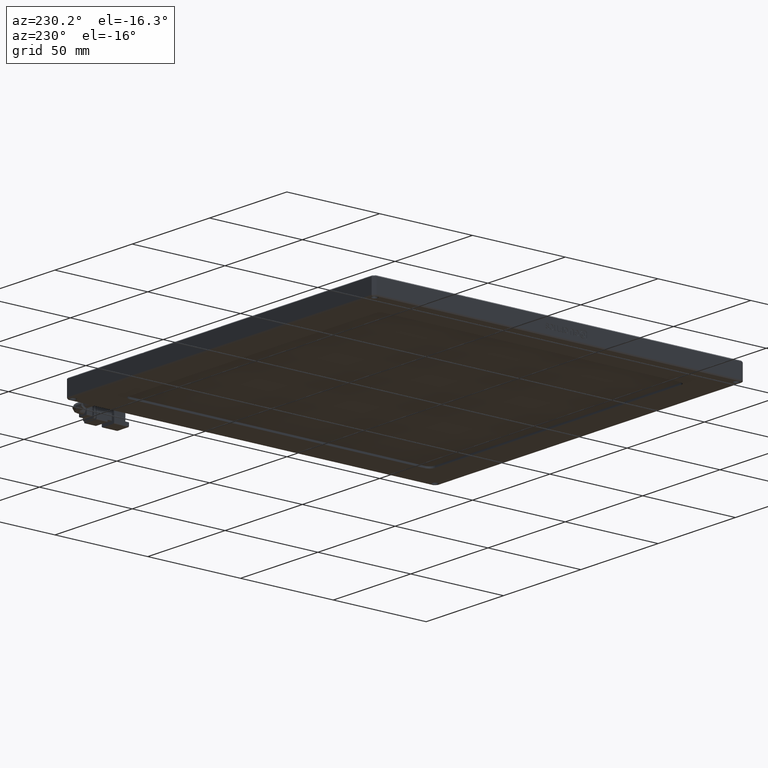
[diagram: clean part render]
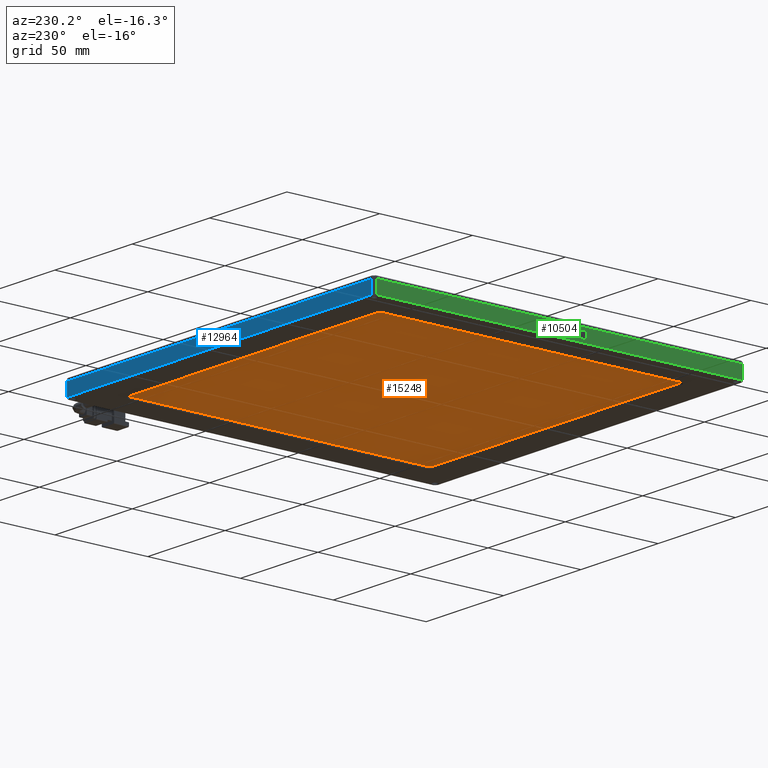
[diagram: same view with three faces highlighted in distinct colors, each labeled with its STEP entity id]
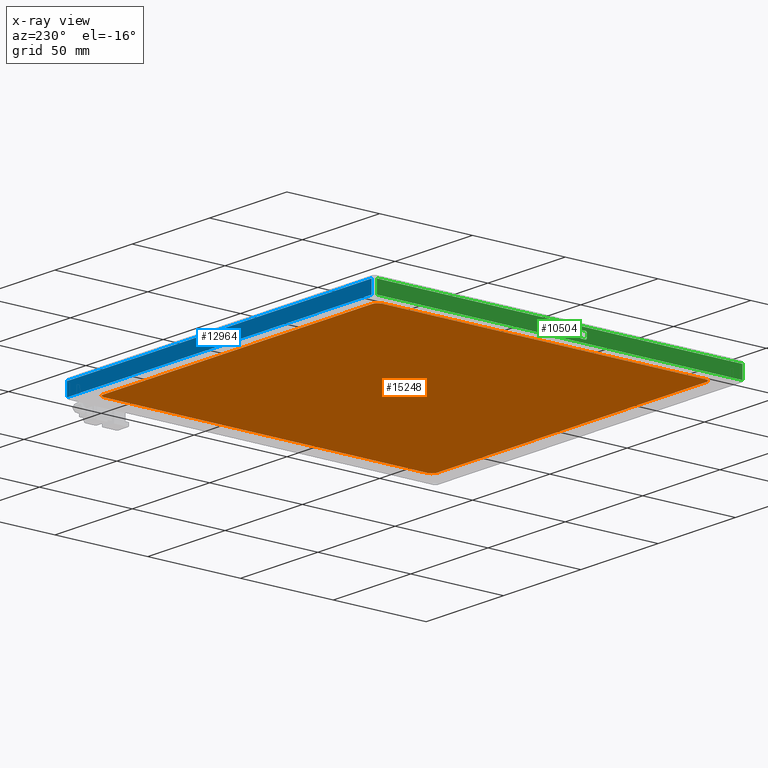
[diagram: x-ray of the same camera — body ghosted, the three highlighted faces saturated]
A machine part, auxiliary view with three faces highlighted in distinct colors.
The next image is the same camera in x-ray (body ghosted, the three faces saturated) — at least one of them is partly hidden behind the body in this view.
Their STEP definitions:

[orange] entity #15248 — the highlighted planar face has unit normal (0, 0, -1).
#321 = DIRECTION ( 'NONE',  ( -1.000000000000000000, 0.0000000000000000000, -0.0000000000000000000 ) ) ;
#325 = CARTESIAN_POINT ( 'NONE',  ( -131.2189553990610000, -72.04917840375587400, -2.000000000000000900 ) ) ;
#817 = EDGE_CURVE ( 'NONE', #12891, #27816, #20311, .T. ) ;
#830 = CARTESIAN_POINT ( 'NONE',  ( -131.2189553990610000, -75.04917840375587400, -2.000000000000000900 ) ) ;
#1544 = DIRECTION ( 'NONE',  ( -0.0000000000000000000, -0.0000000000000000000, 1.000000000000000000 ) ) ;
#2053 = CARTESIAN_POINT ( 'NONE',  ( -134.2189553990610000, -72.04917840375587400, -2.000000000000000900 ) ) ;
#2106 = EDGE_CURVE ( 'NONE', #5833, #27816, #27148, .T. ) ;
#2796 = DIRECTION ( 'NONE',  ( -1.000000000000000000, 0.0000000000000000000, 0.0000000000000000000 ) ) ;
#2820 = LINE ( 'NONE', #19862, #29048 ) ;
#3857 = VECTOR ( 'NONE', #4626, 1000.000000000000000 ) ;
#3960 = CIRCLE ( 'NONE', #21520, 3.000000000000002700 ) ;
#4626 = DIRECTION ( 'NONE',  ( -0.0000000000000000000, -1.000000000000000000, 0.0000000000000000000 ) ) ;
#4843 = CARTESIAN_POINT ( 'NONE',  ( 45.78104460093898400, 101.9508215962441000, -2.000000000000000900 ) ) ;
#5056 = DIRECTION ( 'NONE',  ( -0.0000000000000000000, 1.000000000000000000, 0.0000000000000000000 ) ) ;
#5418 = DIRECTION ( 'NONE',  ( 1.000000000000000000, 0.0000000000000000000, 0.0000000000000000000 ) ) ;
#5833 = VERTEX_POINT ( 'NONE', #26453 ) ;
#6689 = CARTESIAN_POINT ( 'NONE',  ( -131.2189553990610000, 101.9508215962441300, -2.000000000000000900 ) ) ;
#7623 = EDGE_CURVE ( 'NONE', #12891, #28395, #2820, .T. ) ;
#7655 = CARTESIAN_POINT ( 'NONE',  ( -134.2189553990610000, 101.9508215962441000, -2.000000000000000900 ) ) ;
#8214 = LINE ( 'NONE', #12660, #20594 ) ;
#8478 = EDGE_CURVE ( 'NONE', #12107, #14947, #16988, .T. ) ;
#8791 = AXIS2_PLACEMENT_3D ( 'NONE', #325, #17584, #2796 ) ;
#9072 = CARTESIAN_POINT ( 'NONE',  ( -131.2189553990610000, 104.9508215962441300, -2.000000000000000900 ) ) ;
#9200 = DIRECTION ( 'NONE',  ( -1.000000000000000000, 2.775557561562888800E-014, 0.0000000000000000000 ) ) ;
#9536 = EDGE_CURVE ( 'NONE', #10991, #28395, #3960, .T. ) ;
#10877 = DIRECTION ( 'NONE',  ( -0.0000000000000000000, -0.0000000000000000000, 1.000000000000000000 ) ) ;
#10991 = VERTEX_POINT ( 'NONE', #9072 ) ;
#12107 = VERTEX_POINT ( 'NONE', #4843 ) ;
#12660 = CARTESIAN_POINT ( 'NONE',  ( -134.2189553990610000, 104.9508215962441300, -2.000000000000000900 ) ) ;
#12891 = VERTEX_POINT ( 'NONE', #2053 ) ;
#13211 = EDGE_CURVE ( 'NONE', #5833, #14947, #20514, .T. ) ;
#13232 = ORIENTED_EDGE ( 'NONE', *, *, #19648, .T. ) ;
#13474 = VERTEX_POINT ( 'NONE', #29303 ) ;
#13631 = EDGE_LOOP ( 'NONE', ( #15943, #24264, #23730, #18205, #26295, #27671, #13232, #23989 ) ) ;
#14018 = VECTOR ( 'NONE', #31127, 1000.000000000000000 ) ;
#14947 = VERTEX_POINT ( 'NONE', #28561 ) ;
#15085 = DIRECTION ( 'NONE',  ( 0.0000000000000000000, 0.0000000000000000000, -1.000000000000000000 ) ) ;
#15248 = ADVANCED_FACE ( 'NONE', ( #28267 ), #19956, .T. ) ;
#15943 = ORIENTED_EDGE ( 'NONE', *, *, #8478, .T. ) ;
#16317 = CARTESIAN_POINT ( 'NONE',  ( 42.78104460093898400, 101.9508215962441300, -2.000000000000000900 ) ) ;
#16988 = LINE ( 'NONE', #19433, #3857 ) ;
#17584 = DIRECTION ( 'NONE',  ( -0.0000000000000000000, -0.0000000000000000000, 1.000000000000000000 ) ) ;
#18205 = ORIENTED_EDGE ( 'NONE', *, *, #817, .F. ) ;
#18809 = DIRECTION ( 'NONE',  ( -1.000000000000000000, 0.0000000000000000000, 0.0000000000000000000 ) ) ;
#19433 = CARTESIAN_POINT ( 'NONE',  ( 45.78104460093898400, -75.04917840375587400, -2.000000000000000900 ) ) ;
#19648 = EDGE_CURVE ( 'NONE', #10991, #13474, #8214, .T. ) ;
#19862 = CARTESIAN_POINT ( 'NONE',  ( -134.2189553990610000, -75.04917840375587400, -2.000000000000000900 ) ) ;
#19879 = EDGE_CURVE ( 'NONE', #12107, #13474, #31355, .T. ) ;
#19956 = PLANE ( 'NONE',  #20786 ) ;
#20311 = CIRCLE ( 'NONE', #8791, 3.000000000000002700 ) ;
#20514 = CIRCLE ( 'NONE', #21932, 3.000000000000002700 ) ;
#20594 = VECTOR ( 'NONE', #5418, 1000.000000000000000 ) ;
#20786 = AXIS2_PLACEMENT_3D ( 'NONE', #29888, #15085, #321 ) ;
#21520 = AXIS2_PLACEMENT_3D ( 'NONE', #6689, #23953, #9200 ) ;
#21932 = AXIS2_PLACEMENT_3D ( 'NONE', #25616, #10877, #28120 ) ;
#23730 = ORIENTED_EDGE ( 'NONE', *, *, #2106, .T. ) ;
#23752 = CARTESIAN_POINT ( 'NONE',  ( -134.2189553990610000, -75.04917840375587400, -2.000000000000000900 ) ) ;
#23953 = DIRECTION ( 'NONE',  ( -0.0000000000000000000, -0.0000000000000000000, 1.000000000000000000 ) ) ;
#23989 = ORIENTED_EDGE ( 'NONE', *, *, #19879, .F. ) ;
#24264 = ORIENTED_EDGE ( 'NONE', *, *, #13211, .F. ) ;
#25616 = CARTESIAN_POINT ( 'NONE',  ( 42.78104460093898400, -72.04917840375587400, -2.000000000000000900 ) ) ;
#26295 = ORIENTED_EDGE ( 'NONE', *, *, #7623, .T. ) ;
#26453 = CARTESIAN_POINT ( 'NONE',  ( 42.78104460093895500, -75.04917840375587400, -2.000000000000000900 ) ) ;
#27148 = LINE ( 'NONE', #23752, #14018 ) ;
#27671 = ORIENTED_EDGE ( 'NONE', *, *, #9536, .F. ) ;
#27816 = VERTEX_POINT ( 'NONE', #830 ) ;
#28120 = DIRECTION ( 'NONE',  ( -1.000000000000000000, 0.0000000000000000000, 0.0000000000000000000 ) ) ;
#28267 = FACE_OUTER_BOUND ( 'NONE', #13631, .T. ) ;
#28395 = VERTEX_POINT ( 'NONE', #7655 ) ;
#28561 = CARTESIAN_POINT ( 'NONE',  ( 45.78104460093898400, -72.04917840375587400, -2.000000000000000900 ) ) ;
#29048 = VECTOR ( 'NONE', #5056, 1000.000000000000000 ) ;
#29303 = CARTESIAN_POINT ( 'NONE',  ( 42.78104460093895500, 104.9508215962441300, -2.000000000000000900 ) ) ;
#29888 = CARTESIAN_POINT ( 'NONE',  ( -134.2189553990610000, 104.9508215962441300, -2.000000000000000900 ) ) ;
#30986 = AXIS2_PLACEMENT_3D ( 'NONE', #16317, #1544, #18809 ) ;
#31127 = DIRECTION ( 'NONE',  ( -1.000000000000000000, -0.0000000000000000000, 0.0000000000000000000 ) ) ;
#31355 = CIRCLE ( 'NONE', #30986, 3.000000000000002700 ) ;

[blue] entity #12964 — the highlighted planar face has unit normal (0, -1, 0).
#1058 = LINE ( 'NONE', #8235, #19971 ) ;
#1294 = VERTEX_POINT ( 'NONE', #19392 ) ;
#2032 = CARTESIAN_POINT ( 'NONE',  ( -142.7189553990610300, 114.9508215962441300, 4.499999999999999100 ) ) ;
#4370 = AXIS2_PLACEMENT_3D ( 'NONE', #19660, #4842, #22099 ) ;
#4842 = DIRECTION ( 'NONE',  ( 0.0000000000000000000, -1.000000000000000000, 0.0000000000000000000 ) ) ;
#7355 = EDGE_LOOP ( 'NONE', ( #14344, #15831, #28562, #19013 ) ) ;
#8235 = CARTESIAN_POINT ( 'NONE',  ( -142.7189553990610300, 114.9508215962441300, 4.499999999999999100 ) ) ;
#8672 = EDGE_CURVE ( 'NONE', #21723, #1294, #26556, .T. ) ;
#10259 = CARTESIAN_POINT ( 'NONE',  ( -144.2189553990610300, 114.9508215962441300, 4.499999999999999100 ) ) ;
#10761 = EDGE_CURVE ( 'NONE', #21723, #19234, #1058, .T. ) ;
#10965 = CARTESIAN_POINT ( 'NONE',  ( 54.28104460093896900, 114.9508215962441300, 4.499999999999999100 ) ) ;
#12704 = DIRECTION ( 'NONE',  ( 1.000000000000000000, -0.0000000000000000000, 0.0000000000000000000 ) ) ;
#12874 = VECTOR ( 'NONE', #16050, 1000.000000000000000 ) ;
#12906 = CARTESIAN_POINT ( 'NONE',  ( -142.7189553990610300, 114.9508215962441300, -2.500000000000001300 ) ) ;
#12964 = ADVANCED_FACE ( 'NONE', ( #29413 ), #19442, .F. ) ;
#13664 = LINE ( 'NONE', #10965, #12874 ) ;
#14231 = LINE ( 'NONE', #23204, #26560 ) ;
#14344 = ORIENTED_EDGE ( 'NONE', *, *, #26828, .F. ) ;
#15831 = ORIENTED_EDGE ( 'NONE', *, *, #10761, .F. ) ;
#16050 = DIRECTION ( 'NONE',  ( -0.0000000000000000000, 0.0000000000000000000, 1.000000000000000000 ) ) ;
#17558 = EDGE_CURVE ( 'NONE', #19687, #1294, #13664, .T. ) ;
#17961 = CARTESIAN_POINT ( 'NONE',  ( 54.28104460093896900, 114.9508215962441300, -2.500000000000006700 ) ) ;
#18169 = DIRECTION ( 'NONE',  ( 0.0000000000000000000, -0.0000000000000000000, -1.000000000000000000 ) ) ;
#19013 = ORIENTED_EDGE ( 'NONE', *, *, #17558, .F. ) ;
#19234 = VERTEX_POINT ( 'NONE', #12906 ) ;
#19255 = VECTOR ( 'NONE', #12704, 1000.000000000000000 ) ;
#19392 = CARTESIAN_POINT ( 'NONE',  ( 54.28104460093894100, 114.9508215962441300, 4.499999999999999100 ) ) ;
#19442 = PLANE ( 'NONE',  #4370 ) ;
#19660 = CARTESIAN_POINT ( 'NONE',  ( -144.2189553990610300, 114.9508215962441300, 4.499999999999999100 ) ) ;
#19687 = VERTEX_POINT ( 'NONE', #17961 ) ;
#19971 = VECTOR ( 'NONE', #18169, 1000.000000000000000 ) ;
#21723 = VERTEX_POINT ( 'NONE', #2032 ) ;
#22099 = DIRECTION ( 'NONE',  ( 0.0000000000000000000, -0.0000000000000000000, -1.000000000000000000 ) ) ;
#23204 = CARTESIAN_POINT ( 'NONE',  ( -144.2189553990610300, 114.9508215962441300, -2.500000000000000000 ) ) ;
#26556 = LINE ( 'NONE', #10259, #19255 ) ;
#26560 = VECTOR ( 'NONE', #28142, 1000.000000000000000 ) ;
#26828 = EDGE_CURVE ( 'NONE', #19234, #19687, #14231, .T. ) ;
#28142 = DIRECTION ( 'NONE',  ( 1.000000000000000000, -0.0000000000000000000, 0.0000000000000000000 ) ) ;
#28562 = ORIENTED_EDGE ( 'NONE', *, *, #8672, .T. ) ;
#29413 = FACE_OUTER_BOUND ( 'NONE', #7355, .T. ) ;

[green] entity #10504 — the highlighted planar face has unit normal (1, 0, 0).
#58 = CARTESIAN_POINT ( 'NONE',  ( -144.2189553990610300, 14.87528945219695400, 0.6294258583798700800 ) ) ;
#73 = B_SPLINE_CURVE_WITH_KNOTS ( 'NONE', 3,
 ( #2326, #17121, #31893, #19599 ),
 .UNSPECIFIED., .F., .F.,
 ( 4, 4 ),
 ( 6.000000000000000000, 7.000000000000000000 ),
 .UNSPECIFIED. ) ;
#97 = EDGE_CURVE ( 'NONE', #29821, #10137, #13316, .T. ) ;
#104 = CARTESIAN_POINT ( 'NONE',  ( -144.2189553990610300, 5.806738884322371100, 2.024774695589204300 ) ) ;
#120 = VERTEX_POINT ( 'NONE', #4863 ) ;
#218 = EDGE_CURVE ( 'NONE', #27169, #26367, #23403, .T. ) ;
#250 = CARTESIAN_POINT ( 'NONE',  ( -144.2189553990610300, 7.683361382970311100, -0.1845276299922045400 ) ) ;
#336 = ORIENTED_EDGE ( 'NONE', *, *, #28353, .F. ) ;
#364 = LINE ( 'NONE', #19342, #26569 ) ;
#368 = CARTESIAN_POINT ( 'NONE',  ( -144.2189553990610300, 5.644015790758457400, 1.222449114193849200 ) ) ;
#372 = VECTOR ( 'NONE', #15081, 1000.000000000000000 ) ;
#381 = EDGE_CURVE ( 'NONE', #25010, #8979, #24568, .T. ) ;
#423 = CARTESIAN_POINT ( 'NONE',  ( -144.2189553990610300, 20.71128188053672400, 1.455007253728678200 ) ) ;
#523 = VERTEX_POINT ( 'NONE', #28467 ) ;
#528 = DIRECTION ( 'NONE',  ( -0.0000000000000000000, -0.0000000000000000000, 1.000000000000000000 ) ) ;
#569 = VECTOR ( 'NONE', #15136, 1000.000000000000000 ) ;
#717 = VECTOR ( 'NONE', #27915, 1000.000000000000000 ) ;
#828 = CARTESIAN_POINT ( 'NONE',  ( -144.2189553990610300, 0.9555775784204529900, -0.8474943099680345400 ) ) ;
#847 = ORIENTED_EDGE ( 'NONE', *, *, #11496, .F. ) ;
#907 = VERTEX_POINT ( 'NONE', #2593 ) ;
#923 = VERTEX_POINT ( 'NONE', #14664 ) ;
#930 = CARTESIAN_POINT ( 'NONE',  ( -144.2189553990610300, 19.44214991731318800, 2.361983997914735200 ) ) ;
#935 = VERTEX_POINT ( 'NONE', #22309 ) ;
#1027 = CARTESIAN_POINT ( 'NONE',  ( -144.2189553990610300, 6.081481988703174600, 2.032582970332277700 ) ) ;
#1030 = CARTESIAN_POINT ( 'NONE',  ( -144.2189553990610300, 13.53017046896265500, 1.443379346751976000 ) ) ;
#1070 = ORIENTED_EDGE ( 'NONE', *, *, #26813, .F. ) ;
#1207 = DIRECTION ( 'NONE',  ( -0.0000000000000000000, 1.000000000000000000, -0.0000000000000000000 ) ) ;
#1360 = CARTESIAN_POINT ( 'NONE',  ( -144.2189553990610300, 22.66389139919511200, 1.617797951403085600 ) ) ;
#1450 = CARTESIAN_POINT ( 'NONE',  ( -144.2189553990610300, 5.644015790758457400, 0.8736119048915053100 ) ) ;
#1510 = CARTESIAN_POINT ( 'NONE',  ( -144.2189553990610300, 6.305724822667214000, -0.2194113509224153400 ) ) ;
#1550 = CARTESIAN_POINT ( 'NONE',  ( -144.2189553990610300, 12.25732027967118000, -0.1728997230154745400 ) ) ;
#1632 = ORIENTED_EDGE ( 'NONE', *, *, #20686, .F. ) ;
#1652 = EDGE_CURVE ( 'NONE', #28337, #2098, #15603, .T. ) ;
#1665 = VERTEX_POINT ( 'NONE', #31276 ) ;
#1750 = CARTESIAN_POINT ( 'NONE',  ( -144.2189553990610300, 6.023680474370953800, 0.1294258583798974000 ) ) ;
#1771 = CARTESIAN_POINT ( 'NONE',  ( -144.2189553990610300, 21.28977025262957000, 2.385239811868201900 ) ) ;
#1958 = EDGE_CURVE ( 'NONE', #14710, #29821, #20982, .T. ) ;
#2080 = VECTOR ( 'NONE', #3641, 1000.000000000000000 ) ;
#2098 = VERTEX_POINT ( 'NONE', #26335 ) ;
#2187 = ORIENTED_EDGE ( 'NONE', *, *, #7752, .F. ) ;
#2218 = CARTESIAN_POINT ( 'NONE',  ( -144.2189553990610300, 21.68762044192095600, 1.268960742100769100 ) ) ;
#2231 = CARTESIAN_POINT ( 'NONE',  ( -144.2189553990610300, 21.63333434132619400, 2.036402602565892600 ) ) ;
#2317 = CARTESIAN_POINT ( 'NONE',  ( -144.2189553990610300, 19.42044899789718200, -0.2194113509224604500 ) ) ;
#2326 = CARTESIAN_POINT ( 'NONE',  ( -144.2189553990610300, 19.44214991731318800, 2.361983997914735200 ) ) ;
#2391 = DIRECTION ( 'NONE',  ( -0.0000000000000000000, 1.000000000000000000, -2.929152229180571400E-015 ) ) ;
#2475 = VECTOR ( 'NONE', #22750, 1000.000000000000000 ) ;
#2480 = EDGE_CURVE ( 'NONE', #16384, #14421, #26287, .T. ) ;
#2496 = CARTESIAN_POINT ( 'NONE',  ( -144.2189553990610300, 19.70607636404108500, 0.1410537653566135100 ) ) ;
#2520 = CARTESIAN_POINT ( 'NONE',  ( -144.2189553990610300, 20.95709042569604500, 2.230088378661073000 ) ) ;
#2593 = CARTESIAN_POINT ( 'NONE',  ( -144.2189553990610300, 0.9555775784204634200, 2.880931023655545900 ) ) ;
#2696 = CARTESIAN_POINT ( 'NONE',  ( -144.2189553990610300, 5.145029852412934100, 0.4822517101916792800 ) ) ;
#2728 = ORIENTED_EDGE ( 'NONE', *, *, #17012, .F. ) ;
#2783 = VERTEX_POINT ( 'NONE', #16293 ) ;
#2826 = CARTESIAN_POINT ( 'NONE',  ( -144.2189553990610300, 20.71128188053672400, 1.896867718844973200 ) ) ;
#2841 = CARTESIAN_POINT ( 'NONE',  ( -144.2189553990610300, 19.44214991731318800, 2.361983997914735200 ) ) ;
#2848 = EDGE_CURVE ( 'NONE', #3216, #8979, #29001, .T. ) ;
#2947 = VECTOR ( 'NONE', #26541, 1000.000000000000000 ) ;
#3027 = EDGE_CURVE ( 'NONE', #29427, #15540, #3418, .T. ) ;
#3043 = CARTESIAN_POINT ( 'NONE',  ( -144.2189553990610300, 21.70925375722665500, 2.361983997914721000 ) ) ;
#3160 = CARTESIAN_POINT ( 'NONE',  ( -144.2189553990610300, 20.39671995517156200, 1.943379346751941600 ) ) ;
#3174 = LINE ( 'NONE', #31956, #15526 ) ;
#3191 = EDGE_CURVE ( 'NONE', #22451, #21343, #3266, .T. ) ;
#3196 = LINE ( 'NONE', #5424, #15548 ) ;
#3197 = VECTOR ( 'NONE', #12927, 1000.000000000000000 ) ;
#3216 = VERTEX_POINT ( 'NONE', #13035 ) ;
#3231 = CARTESIAN_POINT ( 'NONE',  ( -144.2189553990610300, 0.9555775784204529900, -0.8474943099680345400 ) ) ;
#3266 = LINE ( 'NONE', #25198, #28705 ) ;
#3279 = ORIENTED_EDGE ( 'NONE', *, *, #97, .F. ) ;
#3418 = B_SPLINE_CURVE_WITH_KNOTS ( 'NONE', 3,
 ( #9817, #7203, #14659, #27059 ),
 .UNSPECIFIED., .F., .F.,
 ( 4, 4 ),
 ( 2.000000000000000000, 3.000000000000000000 ),
 .UNSPECIFIED. ) ;
#3434 = CARTESIAN_POINT ( 'NONE',  ( -144.2189553990610300, 113.4508215962441300, -2.500000000000000900 ) ) ;
#3483 = CARTESIAN_POINT ( 'NONE',  ( -144.2189553990610300, 5.018407353765231200, -0.1805389874827353900 ) ) ;
#3490 = ORIENTED_EDGE ( 'NONE', *, *, #29819, .F. ) ;
#3553 = EDGE_CURVE ( 'NONE', #28730, #28337, #3196, .T. ) ;
#3589 = EDGE_CURVE ( 'NONE', #20218, #935, #19706, .T. ) ;
#3625 = CARTESIAN_POINT ( 'NONE',  ( -144.2189553990610300, 17.18579513094209300, -0.1845276299922356300 ) ) ;
#3641 = DIRECTION ( 'NONE',  ( -0.0000000000000000000, -0.0000000000000000000, 1.000000000000000000 ) ) ;
#3650 = VERTEX_POINT ( 'NONE', #1030 ) ;
#3661 = ORIENTED_EDGE ( 'NONE', *, *, #21264, .F. ) ;
#3791 = LINE ( 'NONE', #21931, #15352 ) ;
#3811 = CARTESIAN_POINT ( 'NONE',  ( -144.2189553990610300, 7.162674525209241400, 1.257332835124067100 ) ) ;
#3890 = ORIENTED_EDGE ( 'NONE', *, *, #31364, .F. ) ;
#3895 = CARTESIAN_POINT ( 'NONE',  ( -144.2189553990610300, 20.78726890054726800, 0.01713543112186882700 ) ) ;
#3897 = ORIENTED_EDGE ( 'NONE', *, *, #29745, .F. ) ;
#3928 = VERTEX_POINT ( 'NONE', #26481 ) ;
#3937 = CARTESIAN_POINT ( 'NONE',  ( -144.2189553990610300, 7.488120712337616800, 2.385239811868250300 ) ) ;
#3981 = CARTESIAN_POINT ( 'NONE',  ( -144.2189553990610300, 8.948775120125590700, 2.400687351078630200 ) ) ;
#4010 = CARTESIAN_POINT ( 'NONE',  ( -144.2189553990610300, 5.795922226669469900, 2.361983997914776500 ) ) ;
#4045 = VERTEX_POINT ( 'NONE', #9792 ) ;
#4065 = VERTEX_POINT ( 'NONE', #104 ) ;
#4167 = FACE_BOUND ( 'NONE', #9133, .T. ) ;
#4177 = B_SPLINE_CURVE_WITH_KNOTS ( 'NONE', 3,
 ( #8909, #3981, #23685, #11372 ),
 .UNSPECIFIED., .F., .F.,
 ( 4, 4 ),
 ( 8.000000000000000000, 9.000000000000000000 ),
 .UNSPECIFIED. ) ;
#4239 = LINE ( 'NONE', #4897, #16604 ) ;
#4341 = B_SPLINE_CURVE_WITH_KNOTS ( 'NONE', 3,
 ( #6259, #18497, #23637, #8860 ),
 .UNSPECIFIED., .F., .F.,
 ( 4, 4 ),
 ( 2.000000000000000000, 3.000000000000000000 ),
 .UNSPECIFIED. ) ;
#4349 = EDGE_CURVE ( 'NONE', #21738, #16384, #14822, .T. ) ;
#4379 = LINE ( 'NONE', #7248, #10189 ) ;
#4412 = CARTESIAN_POINT ( 'NONE',  ( -144.2189553990610300, 21.98406446571787100, 1.323280644750859800 ) ) ;
#4415 = EDGE_CURVE ( 'NONE', #20948, #27137, #17428, .T. ) ;
#4419 = CARTESIAN_POINT ( 'NONE',  ( -144.2189553990610300, 15.89496224830288400, 0.1643095793101012600 ) ) ;
#4484 = VECTOR ( 'NONE', #24488, 1000.000000000000000 ) ;
#4549 = DIRECTION ( 'NONE',  ( -0.0000000000000000000, 1.000000000000000000, -0.0000000000000000000 ) ) ;
#4555 = CARTESIAN_POINT ( 'NONE',  ( -144.2189553990610300, 10.79659826777289500, -0.1883472622258575100 ) ) ;
#4612 = VECTOR ( 'NONE', #31563, 1000.000000000000000 ) ;
#4649 = CARTESIAN_POINT ( 'NONE',  ( -144.2189553990610300, 6.338242399736123500, 1.222449114193849200 ) ) ;
#4819 = CARTESIAN_POINT ( 'NONE',  ( -144.2189553990610300, 0.9555775784204529900, -0.8474943099680345400 ) ) ;
#4863 = CARTESIAN_POINT ( 'NONE',  ( -144.2189553990610300, 16.41564910606362900, 0.1643095793101012600 ) ) ;
#4897 = CARTESIAN_POINT ( 'NONE',  ( -144.2189553990610300, 7.162674525209234300, -0.1845276299922010700 ) ) ;
#4921 = CARTESIAN_POINT ( 'NONE',  ( -144.2189553990610300, 21.70925375722664800, 0.8271002769845020600 ) ) ;
#4926 = FACE_BOUND ( 'NONE', #22016, .T. ) ;
#4937 = ORIENTED_EDGE ( 'NONE', *, *, #16109, .F. ) ;
#4956 = CARTESIAN_POINT ( 'NONE',  ( -144.2189553990610300, 19.94113585565826000, 0.6061700444263545800 ) ) ;
#4958 = VECTOR ( 'NONE', #14906, 1000.000000000000000 ) ;
#5079 = VERTEX_POINT ( 'NONE', #25093 ) ;
#5178 = ORIENTED_EDGE ( 'NONE', *, *, #6596, .F. ) ;
#5303 = ORIENTED_EDGE ( 'NONE', *, *, #16854, .F. ) ;
#5424 = CARTESIAN_POINT ( 'NONE',  ( -144.2189553990610300, 6.815527418665194400, 0.5131467886124452300 ) ) ;
#5491 = CARTESIAN_POINT ( 'NONE',  ( -144.2189553990610300, 13.02036787296477800, -0.1845276299922218900 ) ) ;
#5626 = EDGE_CURVE ( 'NONE', #15908, #17067, #73, .T. ) ;
#5707 = CARTESIAN_POINT ( 'NONE',  ( -144.2189553990610300, 12.65861827858949500, 1.889228454377688000 ) ) ;
#5737 = CARTESIAN_POINT ( 'NONE',  ( -144.2189553990610300, 21.40909150736180100, 0.1410537653566065800 ) ) ;
#5744 = CARTESIAN_POINT ( 'NONE',  ( -144.2189553990610300, 0.2757886796995630000, -0.4804290888168784000 ) ) ;
#5859 = CARTESIAN_POINT ( 'NONE',  ( -144.2189553990610300, 4.004213919135302100, 2.201169288717774700 ) ) ;
#5864 = ORIENTED_EDGE ( 'NONE', *, *, #19516, .F. ) ;
#5866 = EDGE_CURVE ( 'NONE', #12846, #30612, #23527, .T. ) ;
#5891 = DIRECTION ( 'NONE',  ( 0.0000000000000000000, 0.0000000000000000000, -1.000000000000000000 ) ) ;
#6179 = ORIENTED_EDGE ( 'NONE', *, *, #23270, .F. ) ;
#6259 = CARTESIAN_POINT ( 'NONE',  ( -144.2189553990610300, 18.83465938188865600, 1.094542137449625100 ) ) ;
#6404 = ORIENTED_EDGE ( 'NONE', *, *, #31318, .F. ) ;
#6465 = VECTOR ( 'NONE', #18004, 1000.000000000000000 ) ;
#6596 = EDGE_CURVE ( 'NONE', #3216, #26536, #26424, .T. ) ;
#6602 = CARTESIAN_POINT ( 'NONE',  ( -144.2189553990610300, 4.602642075236303800, 1.059658416519442000 ) ) ;
#6629 = VERTEX_POINT ( 'NONE', #27971 ) ;
#6657 = CARTESIAN_POINT ( 'NONE',  ( -144.2189553990610300, 5.763337045490581900, 0.1294258583798974000 ) ) ;
#6787 = ORIENTED_EDGE ( 'NONE', *, *, #28073, .F. ) ;
#6877 = LINE ( 'NONE', #22395, #372 ) ;
#7118 = ORIENTED_EDGE ( 'NONE', *, *, #4415, .F. ) ;
#7144 = EDGE_CURVE ( 'NONE', #14954, #7594, #27119, .T. ) ;
#7176 = CARTESIAN_POINT ( 'NONE',  ( -144.2189553990610300, 22.09980270260258100, 0.5596584165193790900 ) ) ;
#7203 = CARTESIAN_POINT ( 'NONE',  ( -144.2189553990610300, 22.12501903575569900, 1.908495625821696100 ) ) ;
#7248 = CARTESIAN_POINT ( 'NONE',  ( -144.2189553990610300, 17.48954039865457900, 2.315472370007766400 ) ) ;
#7272 = DIRECTION ( 'NONE',  ( 1.000000000000000000, 0.0000000000000000000, 0.0000000000000000000 ) ) ;
#7285 = CARTESIAN_POINT ( 'NONE',  ( -144.2189553990610300, 4.602642075236303800, 1.059658416519442000 ) ) ;
#7344 = EDGE_CURVE ( 'NONE', #20977, #13619, #14376, .T. ) ;
#7390 = VECTOR ( 'NONE', #29043, 1000.000000000000000 ) ;
#7394 = CARTESIAN_POINT ( 'NONE',  ( -144.2189553990610300, 21.41997576912501300, 0.7805886490775335600 ) ) ;
#7409 = VECTOR ( 'NONE', #10305, 1000.000000000000000 ) ;
#7419 = VECTOR ( 'NONE', #24692, 1000.000000000000000 ) ;
#7429 = EDGE_CURVE ( 'NONE', #21354, #27169, #11275, .T. ) ;
#7478 = CARTESIAN_POINT ( 'NONE',  ( -144.2189553990610300, 22.66389139919511200, 1.617797951403085600 ) ) ;
#7479 = CARTESIAN_POINT ( 'NONE',  ( -144.2189553990610300, 17.48954039865457900, 2.315472370007766400 ) ) ;
#7546 = ORIENTED_EDGE ( 'NONE', *, *, #381, .F. ) ;
#7594 = VERTEX_POINT ( 'NONE', #12065 ) ;
#7604 = LINE ( 'NONE', #18468, #9961 ) ;
#7746 = DIRECTION ( 'NONE',  ( -0.0000000000000000000, -3.225647976951471700E-015, -1.000000000000000000 ) ) ;
#7752 = EDGE_CURVE ( 'NONE', #26879, #13773, #16309, .T. ) ;
#7769 = CARTESIAN_POINT ( 'NONE',  ( -144.2189553990610300, 14.02915640730773100, 1.443379346751969100 ) ) ;
#7806 = VECTOR ( 'NONE', #11218, 1000.000000000000000 ) ;
#7844 = VECTOR ( 'NONE', #29330, 1000.000000000000000 ) ;
#7854 = VERTEX_POINT ( 'NONE', #25611 ) ;
#7879 = ORIENTED_EDGE ( 'NONE', *, *, #3191, .F. ) ;
#7897 = ORIENTED_EDGE ( 'NONE', *, *, #7429, .F. ) ;
#7946 = EDGE_CURVE ( 'NONE', #25229, #26749, #4177, .T. ) ;
#8100 = ORIENTED_EDGE ( 'NONE', *, *, #10012, .F. ) ;
#8149 = ORIENTED_EDGE ( 'NONE', *, *, #17973, .F. ) ;
#8217 = CARTESIAN_POINT ( 'NONE',  ( -144.2189553990610300, 11.53422671558246300, 2.361983997914762800 ) ) ;
#8230 = VECTOR ( 'NONE', #16431, 1000.000000000000000 ) ;
#8239 = VERTEX_POINT ( 'NONE', #12554 ) ;
#8571 = CARTESIAN_POINT ( 'NONE',  ( -144.2189553990610300, 20.71128188053672400, 1.896867718844973200 ) ) ;
#8615 = VERTEX_POINT ( 'NONE', #27264 ) ;
#8626 = VERTEX_POINT ( 'NONE', #12591 ) ;
#8752 = EDGE_CURVE ( 'NONE', #20965, #20218, #19653, .T. ) ;
#8769 = EDGE_LOOP ( 'NONE', ( #3661, #3897, #25334, #17062, #26260, #28051, #30275, #18404 ) ) ;
#8860 = CARTESIAN_POINT ( 'NONE',  ( -144.2189553990610300, 19.45296657496575000, 0.1410537653566135100 ) ) ;
#8909 = CARTESIAN_POINT ( 'NONE',  ( -144.2189553990610300, 8.204048240731284000, 2.361983997914769900 ) ) ;
#8978 = CARTESIAN_POINT ( 'NONE',  ( -144.2189553990610300, 0.5068539813530836800, 2.880931023655553000 ) ) ;
#8979 = VERTEX_POINT ( 'NONE', #9472 ) ;
#8982 = EDGE_CURVE ( 'NONE', #8239, #20965, #11377, .T. ) ;
#9001 = LINE ( 'NONE', #24586, #22120 ) ;
#9047 = VERTEX_POINT ( 'NONE', #7285 ) ;
#9050 = CARTESIAN_POINT ( 'NONE',  ( -144.2189553990610300, 4.004213919135296800, 2.649831739969910100 ) ) ;
#9062 = EDGE_LOOP ( 'NONE', ( #1070, #17278, #15633, #10102, #18774, #5864, #25439, #6179, #17108, #11423, #2187, #22958, #11921, #19064 ) ) ;
#9100 = LINE ( 'NONE', #29909, #21441 ) ;
#9109 = CARTESIAN_POINT ( 'NONE',  ( -144.2189553990610300, 5.029291615528341800, 2.330919909218180500 ) ) ;
#9133 = EDGE_LOOP ( 'NONE', ( #14274, #16856, #22065, #3890, #336, #20955, #21873, #23064, #7897, #3490 ) ) ;
#9165 = CARTESIAN_POINT ( 'NONE',  ( -144.2189553990610300, 6.273207245598648300, 0.5131467886124452300 ) ) ;
#9318 = VECTOR ( 'NONE', #31395, 1000.000000000000000 ) ;
#9385 = CARTESIAN_POINT ( 'NONE',  ( -144.2189553990610300, 22.13232027967115900, 1.652681672333317100 ) ) ;
#9393 = VECTOR ( 'NONE', #11969, 1000.000000000000000 ) ;
#9426 = EDGE_CURVE ( 'NONE', #10137, #23620, #12028, .T. ) ;
#9472 = CARTESIAN_POINT ( 'NONE',  ( -144.2189553990610300, 113.4508215962441300, 4.499999999999999100 ) ) ;
#9474 = VERTEX_POINT ( 'NONE', #23751 ) ;
#9534 = CARTESIAN_POINT ( 'NONE',  ( -144.2189553990610300, 10.37353174532839800, 1.082914230472908900 ) ) ;
#9570 = EDGE_CURVE ( 'NONE', #21343, #2783, #27089, .T. ) ;
#9617 = DIRECTION ( 'NONE',  ( -0.0000000000000000000, -0.0000000000000000000, 1.000000000000000000 ) ) ;
#9648 = CARTESIAN_POINT ( 'NONE',  ( -144.2189553990610300, 20.45100605576632400, 0.6061700444263545800 ) ) ;
#9661 = CARTESIAN_POINT ( 'NONE',  ( -144.2189553990610300, 20.97879134511204700, 1.834908551727597400 ) ) ;
#9707 = VERTEX_POINT ( 'NONE', #19694 ) ;
#9724 = CARTESIAN_POINT ( 'NONE',  ( -144.2189553990610300, 14.87528945219695400, 0.6294258583798700800 ) ) ;
#9792 = CARTESIAN_POINT ( 'NONE',  ( -144.2189553990610300, 10.37353174532839800, 1.082914230472908900 ) ) ;
#9817 = CARTESIAN_POINT ( 'NONE',  ( -144.2189553990610300, 22.13232027967115900, 1.652681672333317100 ) ) ;
#9836 = DIRECTION ( 'NONE',  ( -0.0000000000000000000, -0.0000000000000000000, -1.000000000000000000 ) ) ;
#9902 = CARTESIAN_POINT ( 'NONE',  ( -144.2189553990610300, 21.28246900871388200, 0.6604899470764382700 ) ) ;
#9922 = ORIENTED_EDGE ( 'NONE', *, *, #22676, .F. ) ;
#9961 = VECTOR ( 'NONE', #1207, 1000.000000000000000 ) ;
#10012 = EDGE_CURVE ( 'NONE', #4045, #20948, #14307, .T. ) ;
#10076 = CARTESIAN_POINT ( 'NONE',  ( -144.2189553990610300, 0.2757886796995734400, 2.201169288717788500 ) ) ;
#10102 = ORIENTED_EDGE ( 'NONE', *, *, #11937, .F. ) ;
#10137 = VERTEX_POINT ( 'NONE', #17245 ) ;
#10141 = VERTEX_POINT ( 'NONE', #24649 ) ;
#10189 = VECTOR ( 'NONE', #27107, 1000.000000000000000 ) ;
#10200 = CARTESIAN_POINT ( 'NONE',  ( -144.2189553990610300, 11.53422671558245200, -0.2194113509224326900 ) ) ;
#10289 = CARTESIAN_POINT ( 'NONE',  ( -144.2189553990610300, 14.88968912769705200, 1.187565393263603700 ) ) ;
#10305 = DIRECTION ( 'NONE',  ( -0.0000000000000000000, 1.000000000000000000, -0.0000000000000000000 ) ) ;
#10350 = CARTESIAN_POINT ( 'NONE',  ( -144.2189553990610300, 7.860484152034663600, 2.024774695589203000 ) ) ;
#10369 = CARTESIAN_POINT ( 'NONE',  ( -144.2189553990610300, 5.123328932997047500, 1.071286323496172000 ) ) ;
#10492 = CARTESIAN_POINT ( 'NONE',  ( -144.2189553990610300, 8.214864898383966700, 2.024774695589201200 ) ) ;
#10504 = ADVANCED_FACE ( 'NONE', ( #30445, #4926, #24602, #23824, #17301, #18069, #10725, #4167, #29657, #23071 ), #26906, .F. ) ;
#10678 = CARTESIAN_POINT ( 'NONE',  ( -144.2189553990610300, 11.53422671558246300, 2.361983997914762800 ) ) ;
#10684 = CARTESIAN_POINT ( 'NONE',  ( -144.2189553990610300, 17.48954039865457200, -0.1845276299922357600 ) ) ;
#10685 = CARTESIAN_POINT ( 'NONE',  ( -144.2189553990610300, 113.4508215962441300, 4.499999999999999100 ) ) ;
#10720 = VECTOR ( 'NONE', #28019, 1000.000000000000000 ) ;
#10724 = CARTESIAN_POINT ( 'NONE',  ( -144.2189553990610300, 7.162674525209241400, 1.257332835124067100 ) ) ;
#10725 = FACE_BOUND ( 'NONE', #31170, .T. ) ;
#10902 = CARTESIAN_POINT ( 'NONE',  ( -144.2189553990610300, 4.602642075236303800, 1.059658416519442000 ) ) ;
#10937 = B_SPLINE_CURVE_WITH_KNOTS ( 'NONE', 3,
 ( #20321, #22762, #25231, #10492 ),
 .UNSPECIFIED., .F., .F.,
 ( 4, 4 ),
 ( 4.000000000000000000, 5.000000000000000000 ),
 .UNSPECIFIED. ) ;
#11108 = CARTESIAN_POINT ( 'NONE',  ( -144.2189553990610300, 21.08012990649643100, -0.2116030761793660800 ) ) ;
#11131 = CARTESIAN_POINT ( 'NONE',  ( -144.2189553990610300, 22.59878864094754600, 0.5596584165193790900 ) ) ;
#11144 = B_SPLINE_CURVE_WITH_KNOTS ( 'NONE', 3,
 ( #24497, #26982, #12200, #29486 ),
 .UNSPECIFIED., .F., .F.,
 ( 4, 4 ),
 ( 8.000000000000000000, 9.000000000000000000 ),
 .UNSPECIFIED. ) ;
#11218 = DIRECTION ( 'NONE',  ( -0.0000000000000000000, 4.812458675290533900E-015, 1.000000000000000000 ) ) ;
#11241 = CARTESIAN_POINT ( 'NONE',  ( -144.2189553990610300, 7.140973605793240300, 2.017135431121905400 ) ) ;
#11275 = LINE ( 'NONE', #21229, #17099 ) ;
#11372 = CARTESIAN_POINT ( 'NONE',  ( -144.2189553990610300, 9.267122875668883700, 1.234077021170572300 ) ) ;
#11377 = B_SPLINE_CURVE_WITH_KNOTS ( 'NONE', 3,
 ( #26705, #29200, #14423, #31681 ),
 .UNSPECIFIED., .F., .F.,
 ( 4, 4 ),
 ( 3.000000000000000000, 4.000000000000000000 ),
 .UNSPECIFIED. ) ;
#11389 = CARTESIAN_POINT ( 'NONE',  ( -144.2189553990610300, 6.656387342948592700, 0.02477469558918865600 ) ) ;
#11423 = ORIENTED_EDGE ( 'NONE', *, *, #12485, .F. ) ;
#11424 = CARTESIAN_POINT ( 'NONE',  ( -144.2189553990610300, 22.34554364365159200, 0.9589958962381434100 ) ) ;
#11496 = EDGE_CURVE ( 'NONE', #29402, #22451, #4379, .T. ) ;
#11872 = EDGE_CURVE ( 'NONE', #7594, #26879, #26746, .T. ) ;
#11921 = ORIENTED_EDGE ( 'NONE', *, *, #7144, .F. ) ;
#11937 = EDGE_CURVE ( 'NONE', #29115, #28730, #21304, .T. ) ;
#11969 = DIRECTION ( 'NONE',  ( -0.0000000000000000000, 1.000000000000000000, -9.009841873821639200E-015 ) ) ;
#12028 = B_SPLINE_CURVE_WITH_KNOTS ( 'NONE', 3,
 ( #13657, #28396, #16136, #1360 ),
 .UNSPECIFIED., .F., .F.,
 ( 4, 4 ),
 ( 12.00000000000000000, 13.00000000000000000 ),
 .UNSPECIFIED. ) ;
#12046 = CARTESIAN_POINT ( 'NONE',  ( -144.2189553990610300, 20.39671995517156200, 1.466635160705442900 ) ) ;
#12054 = CARTESIAN_POINT ( 'NONE',  ( -144.2189553990610300, 18.30315586647478900, 1.071286323496123400 ) ) ;
#12065 = CARTESIAN_POINT ( 'NONE',  ( -144.2189553990610300, 6.826411680428186900, 1.803844463031056800 ) ) ;
#12185 = EDGE_CURVE ( 'NONE', #14859, #29115, #21734, .T. ) ;
#12186 = CARTESIAN_POINT ( 'NONE',  ( -144.2189553990610300, 14.60041113959519700, -0.1845276299922288300 ) ) ;
#12200 = CARTESIAN_POINT ( 'NONE',  ( -144.2189553990610300, 22.02016506063386500, 0.2883969238206135500 ) ) ;
#12402 = VECTOR ( 'NONE', #20428, 1000.000000000000000 ) ;
#12413 = B_SPLINE_CURVE_WITH_KNOTS ( 'NONE', 3,
 ( #6602, #21289, #9109, #26351 ),
 .UNSPECIFIED., .F., .F.,
 ( 4, 4 ),
 ( 11.00000000000000000, 12.00000000000000000 ),
 .UNSPECIFIED. ) ;
#12456 = VERTEX_POINT ( 'NONE', #58 ) ;
#12480 = EDGE_CURVE ( 'NONE', #28197, #15908, #24213, .T. ) ;
#12485 = EDGE_CURVE ( 'NONE', #13773, #31921, #19467, .T. ) ;
#12528 = EDGE_LOOP ( 'NONE', ( #15043, #6404, #31665, #17715, #19222, #30706, #18155, #6787 ) ) ;
#12554 = CARTESIAN_POINT ( 'NONE',  ( -144.2189553990610300, 4.004213919135295000, -0.1677393702695095800 ) ) ;
#12564 = LINE ( 'NONE', #15288, #31502 ) ;
#12591 = CARTESIAN_POINT ( 'NONE',  ( -144.2189553990610300, 8.214864898383966700, 2.024774695589201200 ) ) ;
#12642 = CARTESIAN_POINT ( 'NONE',  ( -144.2189553990610300, 18.33925646139111600, 1.893048086611337500 ) ) ;
#12803 = CARTESIAN_POINT ( 'NONE',  ( -144.2189553990610300, 7.683361382970316500, 1.811652737774158000 ) ) ;
#12846 = VERTEX_POINT ( 'NONE', #4419 ) ;
#12886 = CARTESIAN_POINT ( 'NONE',  ( -144.2189553990610300, 0.5068539813530732500, -0.8474943099680311000 ) ) ;
#12927 = DIRECTION ( 'NONE',  ( -0.0000000000000000000, -1.000000000000000000, -0.0000000000000000000 ) ) ;
#12976 = EDGE_CURVE ( 'NONE', #10141, #28976, #28757, .T. ) ;
#13035 = CARTESIAN_POINT ( 'NONE',  ( -144.2189553990610300, -83.54917840375587400, 4.499999999999999100 ) ) ;
#13084 = CARTESIAN_POINT ( 'NONE',  ( -144.2189553990610300, 21.28977025262956200, 0.2496935706567601800 ) ) ;
#13228 = CARTESIAN_POINT ( 'NONE',  ( -144.2189553990610300, -83.54917840375587400, 4.499999999999999100 ) ) ;
#13236 = CARTESIAN_POINT ( 'NONE',  ( -144.2189553990610300, 19.56147117204543000, 2.024774695589162600 ) ) ;
#13272 = CARTESIAN_POINT ( 'NONE',  ( -144.2189553990610300, 15.89496224830288400, 0.1643095793101012600 ) ) ;
#13289 = VERTEX_POINT ( 'NONE', #25944 ) ;
#13316 = B_SPLINE_CURVE_WITH_KNOTS ( 'NONE', 3,
 ( #2826, #2520, #1771, #3043 ),
 .UNSPECIFIED., .F., .F.,
 ( 4, 4 ),
 ( 13.00000000000000000, 14.00000000000000000 ),
 .UNSPECIFIED. ) ;
#13390 = ORIENTED_EDGE ( 'NONE', *, *, #24842, .F. ) ;
#13490 = CARTESIAN_POINT ( 'NONE',  ( -144.2189553990610300, 19.56147117204543000, 2.024774695589162600 ) ) ;
#13619 = VERTEX_POINT ( 'NONE', #10724 ) ;
#13634 = CARTESIAN_POINT ( 'NONE',  ( -144.2189553990610300, 4.004213919135291500, -0.1677393702695130500 ) ) ;
#13645 = CARTESIAN_POINT ( 'NONE',  ( -144.2189553990610300, 0.2757886796995682200, 2.649831739969923800 ) ) ;
#13657 = CARTESIAN_POINT ( 'NONE',  ( -144.2189553990610300, 21.70925375722665500, 2.361983997914721000 ) ) ;
#13677 = CARTESIAN_POINT ( 'NONE',  ( -144.2189553990610300, 20.45100605576632400, 0.6061700444263545800 ) ) ;
#13679 = VERTEX_POINT ( 'NONE', #3625 ) ;
#13715 = CARTESIAN_POINT ( 'NONE',  ( -144.2189553990610300, 6.826411680428186900, 0.8736119048915053100 ) ) ;
#13743 = EDGE_CURVE ( 'NONE', #13619, #25229, #14517, .T. ) ;
#13772 = EDGE_CURVE ( 'NONE', #27137, #17932, #31678, .T. ) ;
#13773 = VERTEX_POINT ( 'NONE', #1450 ) ;
#13809 = ORIENTED_EDGE ( 'NONE', *, *, #22345, .F. ) ;
#13814 = LINE ( 'NONE', #10684, #717 ) ;
#13846 = B_SPLINE_CURVE_WITH_KNOTS ( 'NONE', 3,
 ( #30668, #20825, #28248, #13490 ),
 .UNSPECIFIED., .F., .F.,
 ( 4, 4 ),
 ( 4.000000000000000000, 5.000000000000000000 ),
 .UNSPECIFIED. ) ;
#13903 = EDGE_CURVE ( 'NONE', #30612, #18626, #364, .T. ) ;
#13917 = EDGE_CURVE ( 'NONE', #31921, #24103, #23497, .T. ) ;
#13925 = CARTESIAN_POINT ( 'NONE',  ( -144.2189553990610300, 6.826411680428186900, 0.8736119048915053100 ) ) ;
#13941 = ORIENTED_EDGE ( 'NONE', *, *, #23767, .F. ) ;
#13986 = LINE ( 'NONE', #27531, #7409 ) ;
#14012 = EDGE_CURVE ( 'NONE', #3650, #923, #30468, .T. ) ;
#14035 = CARTESIAN_POINT ( 'NONE',  ( -144.2189553990610300, 15.12481622342464700, -0.1845276299922288300 ) ) ;
#14201 = EDGE_CURVE ( 'NONE', #2783, #29402, #13814, .T. ) ;
#14222 = EDGE_CURVE ( 'NONE', #523, #12846, #17295, .T. ) ;
#14274 = ORIENTED_EDGE ( 'NONE', *, *, #7946, .F. ) ;
#14275 = CARTESIAN_POINT ( 'NONE',  ( -144.2189553990610300, 5.145029852412937600, 1.668298221819596100 ) ) ;
#14284 = EDGE_CURVE ( 'NONE', #28976, #22184, #7604, .T. ) ;
#14307 = B_SPLINE_CURVE_WITH_KNOTS ( 'NONE', 3,
 ( #26485, #28985, #31490, #16718 ),
 .UNSPECIFIED., .F., .F.,
 ( 4, 4 ),
 ( 1.000000000000000000, 2.000000000000000000 ),
 .UNSPECIFIED. ) ;
#14321 = EDGE_CURVE ( 'NONE', #23225, #3928, #19285, .T. ) ;
#14324 = CARTESIAN_POINT ( 'NONE',  ( -144.2189553990610300, 18.83465938188865600, 1.094542137449625100 ) ) ;
#14376 = LINE ( 'NONE', #3811, #7806 ) ;
#14421 = VERTEX_POINT ( 'NONE', #28772 ) ;
#14423 = CARTESIAN_POINT ( 'NONE',  ( -144.2189553990610300, 3.773080665093620800, -0.8474943099680415400 ) ) ;
#14500 = CARTESIAN_POINT ( 'NONE',  ( -144.2189553990610300, 20.76556798113137600, 0.4666351607054211600 ) ) ;
#14517 = B_SPLINE_CURVE_WITH_KNOTS ( 'NONE', 3,
 ( #28495, #11241, #3937, #21156 ),
 .UNSPECIFIED., .F., .F.,
 ( 4, 4 ),
 ( 9.000000000000000000, 10.00000000000000000 ),
 .UNSPECIFIED. ) ;
#14659 = CARTESIAN_POINT ( 'NONE',  ( -144.2189553990610300, 21.95878052845434800, 2.036402602565892600 ) ) ;
#14664 = CARTESIAN_POINT ( 'NONE',  ( -144.2189553990610300, 14.02915640730773100, 1.443379346751969100 ) ) ;
#14710 = VERTEX_POINT ( 'NONE', #423 ) ;
#14725 = DIRECTION ( 'NONE',  ( -0.0000000000000000000, -0.0000000000000000000, -1.000000000000000000 ) ) ;
#14822 = LINE ( 'NONE', #5491, #2475 ) ;
#14844 = CARTESIAN_POINT ( 'NONE',  ( -144.2189553990610300, 22.13232027967115900, 1.652681672333317100 ) ) ;
#14859 = VERTEX_POINT ( 'NONE', #15825 ) ;
#14904 = CARTESIAN_POINT ( 'NONE',  ( -144.2189553990610300, 6.815527418665194400, 0.5131467886124452300 ) ) ;
#14906 = DIRECTION ( 'NONE',  ( -0.0000000000000000000, 1.000000000000000000, -1.390599087204860200E-014 ) ) ;
#14910 = B_SPLINE_CURVE_WITH_KNOTS ( 'NONE', 3,
 ( #31119, #13645, #8978, #26221 ),
 .UNSPECIFIED., .F., .F.,
 ( 4, 4 ),
 ( 7.000000000000000000, 8.000000000000000000 ),
 .UNSPECIFIED. ) ;
#14954 = VERTEX_POINT ( 'NONE', #4010 ) ;
#15043 = ORIENTED_EDGE ( 'NONE', *, *, #25497, .F. ) ;
#15081 = DIRECTION ( 'NONE',  ( -0.0000000000000000000, -1.000000000000000000, 3.366795205228711200E-015 ) ) ;
#15091 = ORIENTED_EDGE ( 'NONE', *, *, #1958, .F. ) ;
#15123 = B_SPLINE_CURVE_WITH_KNOTS ( 'NONE', 3,
 ( #4921, #7394, #9902, #27149 ),
 .UNSPECIFIED., .F., .F.,
 ( 4, 4 ),
 ( 10.00000000000000000, 11.00000000000000000 ),
 .UNSPECIFIED. ) ;
#15136 = DIRECTION ( 'NONE',  ( -0.0000000000000000000, -0.0000000000000000000, 1.000000000000000000 ) ) ;
#15171 = CARTESIAN_POINT ( 'NONE',  ( -144.2189553990610300, 13.02036787296477800, -0.1845276299922218900 ) ) ;
#15288 = CARTESIAN_POINT ( 'NONE',  ( -144.2189553990610300, 6.338242399736123500, 1.641053765356614800 ) ) ;
#15321 = CARTESIAN_POINT ( 'NONE',  ( -144.2189553990610300, 5.763337045490581900, 0.1294258583798974000 ) ) ;
#15352 = VECTOR ( 'NONE', #24408, 1000.000000000000000 ) ;
#15498 = VERTEX_POINT ( 'NONE', #23478 ) ;
#15526 = VECTOR ( 'NONE', #2391, 1000.000000000000000 ) ;
#15540 = VERTEX_POINT ( 'NONE', #26040 ) ;
#15548 = VECTOR ( 'NONE', #22686, 1000.000000000000000 ) ;
#15582 = CARTESIAN_POINT ( 'NONE',  ( -144.2189553990610300, 21.29707149654524300, 0.4666351607054211600 ) ) ;
#15603 = B_SPLINE_CURVE_WITH_KNOTS ( 'NONE', 3,
 ( #31175, #11389, #1510, #16394 ),
 .UNSPECIFIED., .F., .F.,
 ( 4, 4 ),
 ( 13.00000000000000000, 14.00000000000000000 ),
 .UNSPECIFIED. ) ;
#15621 = ORIENTED_EDGE ( 'NONE', *, *, #19852, .F. ) ;
#15633 = ORIENTED_EDGE ( 'NONE', *, *, #3553, .F. ) ;
#15825 = CARTESIAN_POINT ( 'NONE',  ( -144.2189553990610300, 5.123328932997047500, 1.071286323496172000 ) ) ;
#15908 = VERTEX_POINT ( 'NONE', #930 ) ;
#16027 = CARTESIAN_POINT ( 'NONE',  ( -144.2189553990610300, 6.826411680428186900, 1.803844463031056800 ) ) ;
#16052 = LINE ( 'NONE', #10076, #29157 ) ;
#16109 = EDGE_CURVE ( 'NONE', #23620, #6629, #28715, .T. ) ;
#16112 = CARTESIAN_POINT ( 'NONE',  ( -144.2189553990610300, 21.64421860308917500, -0.2194113509224708500 ) ) ;
#16136 = CARTESIAN_POINT ( 'NONE',  ( -144.2189553990610300, 22.67098983077997300, 2.113809308893626900 ) ) ;
#16293 = CARTESIAN_POINT ( 'NONE',  ( -144.2189553990610300, 17.99941059876252000, -0.1845276299922396200 ) ) ;
#16309 = LINE ( 'NONE', #27693, #3197 ) ;
#16326 = CARTESIAN_POINT ( 'NONE',  ( -144.2189553990610300, 12.69492168583674300, 1.082914230472902000 ) ) ;
#16384 = VERTEX_POINT ( 'NONE', #15171 ) ;
#16394 = CARTESIAN_POINT ( 'NONE',  ( -144.2189553990610300, 5.763337045490580100, -0.2194113509224153400 ) ) ;
#16408 = CARTESIAN_POINT ( 'NONE',  ( -144.2189553990610300, 3.773080665093631000, 2.880931023655539200 ) ) ;
#16431 = DIRECTION ( 'NONE',  ( -0.0000000000000000000, -0.0000000000000000000, 1.000000000000000000 ) ) ;
#16503 = EDGE_LOOP ( 'NONE', ( #13390, #5178, #18581, #7546 ) ) ;
#16529 = ORIENTED_EDGE ( 'NONE', *, *, #27042, .F. ) ;
#16604 = VECTOR ( 'NONE', #29627, 1000.000000000000000 ) ;
#16618 = CARTESIAN_POINT ( 'NONE',  ( -144.2189553990610300, 15.89496224830289100, 2.315472370007773500 ) ) ;
#16718 = CARTESIAN_POINT ( 'NONE',  ( -144.2189553990610300, 11.53422671558246300, 2.361983997914762800 ) ) ;
#16723 = CARTESIAN_POINT ( 'NONE',  ( -144.2189553990610300, 19.56147117204543000, 2.024774695589162600 ) ) ;
#16766 = ORIENTED_EDGE ( 'NONE', *, *, #14321, .F. ) ;
#16854 = EDGE_CURVE ( 'NONE', #17932, #4045, #25224, .T. ) ;
#16856 = ORIENTED_EDGE ( 'NONE', *, *, #13743, .F. ) ;
#17012 = EDGE_CURVE ( 'NONE', #923, #12456, #18820, .T. ) ;
#17015 = CARTESIAN_POINT ( 'NONE',  ( -144.2189553990610300, 21.02212557983329000, 1.152681672333323500 ) ) ;
#17062 = ORIENTED_EDGE ( 'NONE', *, *, #3589, .F. ) ;
#17067 = VERTEX_POINT ( 'NONE', #3160 ) ;
#17099 = VECTOR ( 'NONE', #18789, 1000.000000000000000 ) ;
#17108 = ORIENTED_EDGE ( 'NONE', *, *, #13917, .F. ) ;
#17112 = CARTESIAN_POINT ( 'NONE',  ( -144.2189553990610300, 19.99163612607467800, -0.2116030761793626100 ) ) ;
#17121 = CARTESIAN_POINT ( 'NONE',  ( -144.2189553990610300, 19.86873185349469400, 2.361983997914735200 ) ) ;
#17223 = CARTESIAN_POINT ( 'NONE',  ( -144.2189553990610300, 17.18579513094208600, -0.1845276299922357600 ) ) ;
#17245 = CARTESIAN_POINT ( 'NONE',  ( -144.2189553990610300, 21.70925375722665500, 2.361983997914721000 ) ) ;
#17278 = ORIENTED_EDGE ( 'NONE', *, *, #1652, .F. ) ;
#17295 = LINE ( 'NONE', #13272, #10720 ) ;
#17301 = FACE_BOUND ( 'NONE', #12528, .T. ) ;
#17411 = DIRECTION ( 'NONE',  ( -0.0000000000000000000, 3.107473099484055600E-015, 1.000000000000000000 ) ) ;
#17428 = B_SPLINE_CURVE_WITH_KNOTS ( 'NONE', 3,
 ( #10678, #25420, #5707, #27912 ),
 .UNSPECIFIED., .F., .F.,
 ( 4, 4 ),
 ( 0.0000000000000000000, 1.000000000000000000 ),
 .UNSPECIFIED. ) ;
#17561 = CARTESIAN_POINT ( 'NONE',  ( -144.2189553990610300, 21.64421860308917500, -0.2194113509224708500 ) ) ;
#17610 = B_SPLINE_CURVE_WITH_KNOTS ( 'NONE', 3,
 ( #18894, #16408, #9050, #26296 ),
 .UNSPECIFIED., .F., .F.,
 ( 4, 4 ),
 ( 5.000000000000000000, 6.000000000000000000 ),
 .UNSPECIFIED. ) ;
#17620 = CARTESIAN_POINT ( 'NONE',  ( -144.2189553990610300, 18.71892114500384000, 2.323111634475030700 ) ) ;
#17673 = VECTOR ( 'NONE', #9617, 1000.000000000000000 ) ;
#17715 = ORIENTED_EDGE ( 'NONE', *, *, #18574, .F. ) ;
#17932 = VERTEX_POINT ( 'NONE', #10200 ) ;
#17973 = EDGE_CURVE ( 'NONE', #24745, #5079, #13986, .T. ) ;
#18004 = DIRECTION ( 'NONE',  ( -0.0000000000000000000, -1.000000000000000000, 2.929152229180571400E-015 ) ) ;
#18027 = ORIENTED_EDGE ( 'NONE', *, *, #2480, .F. ) ;
#18069 = FACE_BOUND ( 'NONE', #21618, .T. ) ;
#18144 = LINE ( 'NONE', #17223, #29733 ) ;
#18155 = ORIENTED_EDGE ( 'NONE', *, *, #14222, .F. ) ;
#18165 = CARTESIAN_POINT ( 'NONE',  ( -144.2189553990610300, 6.338242399736123500, 1.641053765356614800 ) ) ;
#18243 = VERTEX_POINT ( 'NONE', #14035 ) ;
#18254 = CARTESIAN_POINT ( 'NONE',  ( -144.2189553990610300, 5.763337045490580100, -0.2194113509224153400 ) ) ;
#18270 = CARTESIAN_POINT ( 'NONE',  ( -144.2189553990610300, 7.162674525209234300, -0.1845276299922010700 ) ) ;
#18281 = CARTESIAN_POINT ( 'NONE',  ( -144.2189553990610300, 5.806738884322371100, 2.024774695589204300 ) ) ;
#18396 = B_SPLINE_CURVE_WITH_KNOTS ( 'NONE', 3,
 ( #2231, #19505, #9661, #26909 ),
 .UNSPECIFIED., .F., .F.,
 ( 4, 4 ),
 ( 1.000000000000000000, 2.000000000000000000 ),
 .UNSPECIFIED. ) ;
#18404 = ORIENTED_EDGE ( 'NONE', *, *, #28579, .F. ) ;
#18468 = CARTESIAN_POINT ( 'NONE',  ( -144.2189553990610300, 20.45100605576632400, 0.6061700444263545800 ) ) ;
#18497 = CARTESIAN_POINT ( 'NONE',  ( -144.2189553990610300, 18.84182541758349700, 0.4744434354485571600 ) ) ;
#18574 = EDGE_CURVE ( 'NONE', #18626, #120, #9100, .T. ) ;
#18581 = ORIENTED_EDGE ( 'NONE', *, *, #2848, .T. ) ;
#18605 = DIRECTION ( 'NONE',  ( -0.0000000000000000000, -4.393728232776364400E-015, -1.000000000000000000 ) ) ;
#18626 = VERTEX_POINT ( 'NONE', #30235 ) ;
#18646 = LINE ( 'NONE', #19837, #30990 ) ;
#18774 = ORIENTED_EDGE ( 'NONE', *, *, #12185, .F. ) ;
#18789 = DIRECTION ( 'NONE',  ( -0.0000000000000000000, -1.000000000000000000, -0.0000000000000000000 ) ) ;
#18812 = CARTESIAN_POINT ( 'NONE',  ( -144.2189553990610300, 22.66389139919510500, 1.222449114193793700 ) ) ;
#18816 = CARTESIAN_POINT ( 'NONE',  ( -144.2189553990610300, 11.53422671558245200, -0.2194113509224326900 ) ) ;
#18820 = B_SPLINE_CURVE_WITH_KNOTS ( 'NONE', 3,
 ( #7769, #22565, #10289, #27514 ),
 .UNSPECIFIED., .F., .F.,
 ( 4, 4 ),
 ( 6.000000000000000000, 7.000000000000000000 ),
 .UNSPECIFIED. ) ;
#18884 = EDGE_LOOP ( 'NONE', ( #22701, #3279, #15091, #30046, #28225, #19354, #13809, #16766, #9922, #8149, #30784, #13941, #31237, #4937 ) ) ;
#18894 = CARTESIAN_POINT ( 'NONE',  ( -144.2189553990610300, 3.324486177564312000, 2.880931023655539200 ) ) ;
#19004 = CARTESIAN_POINT ( 'NONE',  ( -144.2189553990610300, 6.193501999519726000, 0.2573328351240800100 ) ) ;
#19028 = CARTESIAN_POINT ( 'NONE',  ( -144.2189553990610300, 9.267122875668876600, -0.1845276299922080100 ) ) ;
#19036 = CARTESIAN_POINT ( 'NONE',  ( -144.2189553990610300, 17.99941059876252700, -0.1845276299922392300 ) ) ;
#19045 = ORIENTED_EDGE ( 'NONE', *, *, #24142, .F. ) ;
#19064 = ORIENTED_EDGE ( 'NONE', *, *, #31186, .F. ) ;
#19076 = EDGE_CURVE ( 'NONE', #6629, #25923, #15123, .T. ) ;
#19123 = CARTESIAN_POINT ( 'NONE',  ( -144.2189553990610300, -83.54917840375588900, -2.500000000000008400 ) ) ;
#19130 = ORIENTED_EDGE ( 'NONE', *, *, #4349, .F. ) ;
#19222 = ORIENTED_EDGE ( 'NONE', *, *, #13903, .F. ) ;
#19285 = B_SPLINE_CURVE_WITH_KNOTS ( 'NONE', 3,
 ( #28453, #11108, #3895, #21118 ),
 .UNSPECIFIED., .F., .F.,
 ( 4, 4 ),
 ( 5.000000000000000000, 6.000000000000000000 ),
 .UNSPECIFIED. ) ;
#19342 = CARTESIAN_POINT ( 'NONE',  ( -144.2189553990610300, 16.41564910606363300, 2.315472370007773500 ) ) ;
#19354 = ORIENTED_EDGE ( 'NONE', *, *, #26999, .F. ) ;
#19464 = DIRECTION ( 'NONE',  ( -0.0000000000000000000, 1.000000000000000000, -0.0000000000000000000 ) ) ;
#19467 = LINE ( 'NONE', #368, #569 ) ;
#19505 = CARTESIAN_POINT ( 'NONE',  ( -144.2189553990610300, 21.28625483889234700, 2.028763338098614500 ) ) ;
#19516 = EDGE_CURVE ( 'NONE', #4065, #14859, #27302, .T. ) ;
#19599 = CARTESIAN_POINT ( 'NONE',  ( -144.2189553990610300, 20.39671995517156200, 1.943379346751941600 ) ) ;
#19610 = CARTESIAN_POINT ( 'NONE',  ( -144.2189553990610300, 17.48954039865457200, -0.1845276299922357600 ) ) ;
#19653 = LINE ( 'NONE', #3231, #6465 ) ;
#19694 = CARTESIAN_POINT ( 'NONE',  ( -144.2189553990610300, 20.39671995517156200, 1.466635160705442900 ) ) ;
#19706 = B_SPLINE_CURVE_WITH_KNOTS ( 'NONE', 3,
 ( #828, #12886, #5744, #23004 ),
 .UNSPECIFIED., .F., .F.,
 ( 4, 4 ),
 ( 1.000000000000000000, 2.000000000000000000 ),
 .UNSPECIFIED. ) ;
#19760 = CARTESIAN_POINT ( 'NONE',  ( -144.2189553990610300, 19.86873185349468700, 0.2962051985637426100 ) ) ;
#19837 = CARTESIAN_POINT ( 'NONE',  ( -144.2189553990610300, -85.04917840375587400, -2.500000000000000000 ) ) ;
#19852 = EDGE_CURVE ( 'NONE', #27423, #10141, #4341, .T. ) ;
#19887 = B_SPLINE_CURVE_WITH_KNOTS ( 'NONE', 3,
 ( #29113, #24350, #26835, #12054 ),
 .UNSPECIFIED., .F., .F.,
 ( 4, 4 ),
 ( 8.000000000000000000, 9.000000000000000000 ),
 .UNSPECIFIED. ) ;
#19911 = VECTOR ( 'NONE', #5891, 1000.000000000000000 ) ;
#19996 = ORIENTED_EDGE ( 'NONE', *, *, #26038, .F. ) ;
#20103 = B_SPLINE_CURVE_WITH_KNOTS ( 'NONE', 3,
 ( #21651, #4412, #24122, #9385 ),
 .UNSPECIFIED., .F., .F.,
 ( 4, 4 ),
 ( 3.000000000000000000, 4.000000000000000000 ),
 .UNSPECIFIED. ) ;
#20199 = ORIENTED_EDGE ( 'NONE', *, *, #26651, .F. ) ;
#20218 = VERTEX_POINT ( 'NONE', #4819 ) ;
#20228 = VECTOR ( 'NONE', #31200, 1000.000000000000000 ) ;
#20321 = CARTESIAN_POINT ( 'NONE',  ( -144.2189553990610300, 8.746436017908138200, 1.385239811868242700 ) ) ;
#20428 = DIRECTION ( 'NONE',  ( -0.0000000000000000000, 4.163336342344333900E-015, 1.000000000000000000 ) ) ;
#20630 = CARTESIAN_POINT ( 'NONE',  ( -144.2189553990610300, 9.267122875668883700, 1.234077021170572300 ) ) ;
#20663 = B_SPLINE_CURVE_WITH_KNOTS ( 'NONE', 3,
 ( #18254, #3483, #25645, #10902 ),
 .UNSPECIFIED., .F., .F.,
 ( 4, 4 ),
 ( 12.00000000000000000, 13.00000000000000000 ),
 .UNSPECIFIED. ) ;
#20686 = EDGE_CURVE ( 'NONE', #22184, #13289, #31634, .T. ) ;
#20740 = CARTESIAN_POINT ( 'NONE',  ( -144.2189553990610300, 3.324486177564301800, -0.8474943099680415400 ) ) ;
#20762 = CARTESIAN_POINT ( 'NONE',  ( -144.2189553990610300, 6.338242399736127000, 2.361983997914776500 ) ) ;
#20798 = ORIENTED_EDGE ( 'NONE', *, *, #9570, .F. ) ;
#20825 = CARTESIAN_POINT ( 'NONE',  ( -144.2189553990610300, 20.15077620179139800, 1.854344733447449400 ) ) ;
#20863 = B_SPLINE_CURVE_WITH_KNOTS ( 'NONE', 3,
 ( #9724, #26972, #12186, #29471 ),
 .UNSPECIFIED., .F., .F.,
 ( 4, 4 ),
 ( 5.000000000000000000, 6.000000000000000000 ),
 .UNSPECIFIED. ) ;
#20905 = CARTESIAN_POINT ( 'NONE',  ( -144.2189553990610300, 5.763337045490581900, 0.1294258583798974000 ) ) ;
#20948 = VERTEX_POINT ( 'NONE', #8217 ) ;
#20955 = ORIENTED_EDGE ( 'NONE', *, *, #21955, .F. ) ;
#20965 = VERTEX_POINT ( 'NONE', #20740 ) ;
#20977 = VERTEX_POINT ( 'NONE', #18270 ) ;
#20982 = LINE ( 'NONE', #8571, #2080 ) ;
#21058 = B_SPLINE_CURVE_WITH_KNOTS ( 'NONE', 3,
 ( #18165, #25557, #1027, #18281 ),
 .UNSPECIFIED., .F., .F.,
 ( 4, 4 ),
 ( 4.000000000000000000, 5.000000000000000000 ),
 .UNSPECIFIED. ) ;
#21100 = ORIENTED_EDGE ( 'NONE', *, *, #21691, .F. ) ;
#21117 = ORIENTED_EDGE ( 'NONE', *, *, #13772, .F. ) ;
#21118 = CARTESIAN_POINT ( 'NONE',  ( -144.2189553990610300, 20.76556798113137600, 0.4666351607054211600 ) ) ;
#21156 = CARTESIAN_POINT ( 'NONE',  ( -144.2189553990610300, 8.204048240731284000, 2.361983997914769900 ) ) ;
#21210 = VECTOR ( 'NONE', #18605, 1000.000000000000000 ) ;
#21229 = CARTESIAN_POINT ( 'NONE',  ( -144.2189553990610300, 8.746436017908132900, -0.1845276299922080100 ) ) ;
#21250 = CARTESIAN_POINT ( 'NONE',  ( -144.2189553990610300, 22.66389139919511200, 1.617797951403085600 ) ) ;
#21264 = EDGE_CURVE ( 'NONE', #907, #8615, #3174, .T. ) ;
#21289 = CARTESIAN_POINT ( 'NONE',  ( -144.2189553990610300, 4.631441426236837500, 1.896867718845028700 ) ) ;
#21304 = B_SPLINE_CURVE_WITH_KNOTS ( 'NONE', 3,
 ( #6657, #1750, #19004, #9165 ),
 .UNSPECIFIED., .F., .F.,
 ( 4, 4 ),
 ( 1.000000000000000000, 2.000000000000000000 ),
 .UNSPECIFIED. ) ;
#21318 = VERTEX_POINT ( 'NONE', #22204 ) ;
#21343 = VERTEX_POINT ( 'NONE', #27184 ) ;
#21354 = VERTEX_POINT ( 'NONE', #22422 ) ;
#21441 = VECTOR ( 'NONE', #7746, 1000.000000000000000 ) ;
#21504 = CARTESIAN_POINT ( 'NONE',  ( -144.2189553990610300, 21.29707149654524300, 0.4666351607054211600 ) ) ;
#21589 = CARTESIAN_POINT ( 'NONE',  ( -144.2189553990610300, 5.806738884322371100, 2.024774695589204300 ) ) ;
#21618 = EDGE_LOOP ( 'NONE', ( #20199, #2728, #30469, #19045, #19996, #18027, #19130 ) ) ;
#21642 = CARTESIAN_POINT ( 'NONE',  ( -144.2189553990610300, 19.09128458470088700, 1.993879617168389900 ) ) ;
#21651 = CARTESIAN_POINT ( 'NONE',  ( -144.2189553990610300, 21.68762044192095600, 1.268960742100769100 ) ) ;
#21691 = EDGE_CURVE ( 'NONE', #22030, #27423, #29594, .T. ) ;
#21734 = B_SPLINE_CURVE_WITH_KNOTS ( 'NONE', 3,
 ( #10369, #2696, #30116, #15321 ),
 .UNSPECIFIED., .F., .F.,
 ( 4, 4 ),
 ( 2.000000000000000000, 3.000000000000000000 ),
 .UNSPECIFIED. ) ;
#21738 = VERTEX_POINT ( 'NONE', #24338 ) ;
#21800 = CARTESIAN_POINT ( 'NONE',  ( -144.2189553990610300, 11.53422671558245200, -0.2194113509224326900 ) ) ;
#21872 = CARTESIAN_POINT ( 'NONE',  ( -144.2189553990610300, 6.273207245598648300, 0.5131467886124452300 ) ) ;
#21873 = ORIENTED_EDGE ( 'NONE', *, *, #32004, .F. ) ;
#21931 = CARTESIAN_POINT ( 'NONE',  ( -144.2189553990610300, 13.53017046896265500, 2.315472370007780200 ) ) ;
#21955 = EDGE_CURVE ( 'NONE', #8626, #22107, #28295, .T. ) ;
#22016 = EDGE_LOOP ( 'NONE', ( #16529, #1632, #30580, #24216, #15621, #21100, #26244, #28827, #30961, #22699 ) ) ;
#22030 = VERTEX_POINT ( 'NONE', #13236 ) ;
#22038 = CARTESIAN_POINT ( 'NONE',  ( -144.2189553990610300, -85.04917840375587400, 4.499999999999999100 ) ) ;
#22065 = ORIENTED_EDGE ( 'NONE', *, *, #7344, .F. ) ;
#22107 = VERTEX_POINT ( 'NONE', #23262 ) ;
#22120 = VECTOR ( 'NONE', #9836, 1000.000000000000000 ) ;
#22184 = VERTEX_POINT ( 'NONE', #13677 ) ;
#22192 = CARTESIAN_POINT ( 'NONE',  ( -144.2189553990610300, 12.69492168583674300, 1.082914230472902000 ) ) ;
#22204 = CARTESIAN_POINT ( 'NONE',  ( -144.2189553990610300, 7.683361382970311100, -0.1845276299922045400 ) ) ;
#22300 = CARTESIAN_POINT ( 'NONE',  ( -144.2189553990610300, 13.53017046896265500, 2.315472370007780200 ) ) ;
#22309 = CARTESIAN_POINT ( 'NONE',  ( -144.2189553990610300, 0.2757886796995665000, -0.03180061375998924400 ) ) ;
#22345 = EDGE_CURVE ( 'NONE', #3928, #15498, #27092, .T. ) ;
#22395 = CARTESIAN_POINT ( 'NONE',  ( -144.2189553990610300, 15.12481622342464700, -0.1845276299922288300 ) ) ;
#22422 = CARTESIAN_POINT ( 'NONE',  ( -144.2189553990610300, 9.267122875668876600, -0.1845276299922080100 ) ) ;
#22451 = VERTEX_POINT ( 'NONE', #7479 ) ;
#22504 = LINE ( 'NONE', #29257, #9393 ) ;
#22565 = CARTESIAN_POINT ( 'NONE',  ( -144.2189553990610300, 14.60764477940079700, 1.458995896238144000 ) ) ;
#22676 = EDGE_CURVE ( 'NONE', #5079, #23225, #26007, .T. ) ;
#22686 = DIRECTION ( 'NONE',  ( -0.0000000000000000000, 1.000000000000000000, -0.0000000000000000000 ) ) ;
#22699 = ORIENTED_EDGE ( 'NONE', *, *, #12480, .F. ) ;
#22701 = ORIENTED_EDGE ( 'NONE', *, *, #9426, .F. ) ;
#22750 = DIRECTION ( 'NONE',  ( -0.0000000000000000000, -1.000000000000000000, 3.439221237990548500E-015 ) ) ;
#22762 = CARTESIAN_POINT ( 'NONE',  ( -144.2189553990610300, 8.760835693408347800, 1.827100276984551500 ) ) ;
#22958 = ORIENTED_EDGE ( 'NONE', *, *, #11872, .F. ) ;
#22996 = CARTESIAN_POINT ( 'NONE',  ( -144.2189553990610300, 21.65503526074207800, 0.1410537653565996400 ) ) ;
#23004 = CARTESIAN_POINT ( 'NONE',  ( -144.2189553990610300, 0.2757886796995665000, -0.03180061375998924400 ) ) ;
#23064 = ORIENTED_EDGE ( 'NONE', *, *, #218, .F. ) ;
#23071 = FACE_OUTER_BOUND ( 'NONE', #16503, .T. ) ;
#23171 = CARTESIAN_POINT ( 'NONE',  ( -144.2189553990610300, 21.65503526074207800, 0.1410537653565996400 ) ) ;
#23225 = VERTEX_POINT ( 'NONE', #17561 ) ;
#23239 = AXIS2_PLACEMENT_3D ( 'NONE', #22038, #7272, #24520 ) ;
#23262 = CARTESIAN_POINT ( 'NONE',  ( -144.2189553990610300, 7.683361382970318200, 1.385239811868249600 ) ) ;
#23270 = EDGE_CURVE ( 'NONE', #24103, #9474, #12564, .T. ) ;
#23403 = LINE ( 'NONE', #24047, #4484 ) ;
#23478 = CARTESIAN_POINT ( 'NONE',  ( -144.2189553990610300, 21.68762044192095600, 1.268960742100769100 ) ) ;
#23497 = LINE ( 'NONE', #4649, #29291 ) ;
#23527 = LINE ( 'NONE', #29174, #4612 ) ;
#23620 = VERTEX_POINT ( 'NONE', #7478 ) ;
#23637 = CARTESIAN_POINT ( 'NONE',  ( -144.2189553990610300, 19.04788274586909900, 0.1566703148428161300 ) ) ;
#23685 = CARTESIAN_POINT ( 'NONE',  ( -144.2189553990610300, 9.303223470585205500, 2.024774695589197200 ) ) ;
#23741 = CARTESIAN_POINT ( 'NONE',  ( -144.2189553990610300, 15.12481622342464700, 0.1643095793101012600 ) ) ;
#23751 = CARTESIAN_POINT ( 'NONE',  ( -144.2189553990610300, 6.338242399736123500, 1.641053765356614800 ) ) ;
#23767 = EDGE_CURVE ( 'NONE', #25923, #30988, #25566, .T. ) ;
#23824 = FACE_BOUND ( 'NONE', #8769, .T. ) ;
#23919 = CARTESIAN_POINT ( 'NONE',  ( -144.2189553990610300, 114.9508215962441300, 4.499999999999999100 ) ) ;
#24047 = CARTESIAN_POINT ( 'NONE',  ( -144.2189553990610300, 8.746436017908140000, 1.385239811868242700 ) ) ;
#24103 = VERTEX_POINT ( 'NONE', #26856 ) ;
#24122 = CARTESIAN_POINT ( 'NONE',  ( -144.2189553990610300, 22.13232027967115900, 1.451187621495042500 ) ) ;
#24142 = EDGE_CURVE ( 'NONE', #27143, #3650, #9001, .T. ) ;
#24213 = B_SPLINE_CURVE_WITH_KNOTS ( 'NONE', 3,
 ( #29934, #12642, #17620, #2841 ),
 .UNSPECIFIED., .F., .F.,
 ( 4, 4 ),
 ( 7.000000000000000000, 8.000000000000000000 ),
 .UNSPECIFIED. ) ;
#24216 = ORIENTED_EDGE ( 'NONE', *, *, #12976, .F. ) ;
#24268 = CARTESIAN_POINT ( 'NONE',  ( -144.2189553990610300, 18.30315586647478900, 1.071286323496123400 ) ) ;
#24276 = CARTESIAN_POINT ( 'NONE',  ( -144.2189553990610300, 10.40963234024449400, 0.2457049281473222500 ) ) ;
#24338 = CARTESIAN_POINT ( 'NONE',  ( -144.2189553990610300, 14.02915640730772400, -0.1845276299922253600 ) ) ;
#24350 = CARTESIAN_POINT ( 'NONE',  ( -144.2189553990610300, 18.71161990108815600, -0.1728997230154988300 ) ) ;
#24408 = DIRECTION ( 'NONE',  ( -0.0000000000000000000, 1.000000000000000000, -0.0000000000000000000 ) ) ;
#24488 = DIRECTION ( 'NONE',  ( -0.0000000000000000000, 4.420332412859460000E-015, 1.000000000000000000 ) ) ;
#24497 = CARTESIAN_POINT ( 'NONE',  ( -144.2189553990610300, 21.65503526074207800, 0.1410537653565996400 ) ) ;
#24520 = DIRECTION ( 'NONE',  ( 0.0000000000000000000, 0.0000000000000000000, -1.000000000000000000 ) ) ;
#24568 = LINE ( 'NONE', #10685, #17673 ) ;
#24586 = CARTESIAN_POINT ( 'NONE',  ( -144.2189553990610300, 13.53017046896265500, 1.443379346751976000 ) ) ;
#24602 = FACE_BOUND ( 'NONE', #18884, .T. ) ;
#24649 = CARTESIAN_POINT ( 'NONE',  ( -144.2189553990610300, 19.45296657496575000, 0.1410537653566135100 ) ) ;
#24692 = DIRECTION ( 'NONE',  ( -0.0000000000000000000, -4.420332412859450500E-015, -1.000000000000000000 ) ) ;
#24745 = VERTEX_POINT ( 'NONE', #7176 ) ;
#24842 = EDGE_CURVE ( 'NONE', #26536, #25010, #18646, .T. ) ;
#25010 = VERTEX_POINT ( 'NONE', #3434 ) ;
#25062 = CARTESIAN_POINT ( 'NONE',  ( -144.2189553990610300, 8.214864898383966700, 2.024774695589201200 ) ) ;
#25093 = CARTESIAN_POINT ( 'NONE',  ( -144.2189553990610300, 22.59878864094754600, 0.5596584165193790900 ) ) ;
#25198 = CARTESIAN_POINT ( 'NONE',  ( -144.2189553990610300, 17.99941059876253400, 2.315472370007759300 ) ) ;
#25224 = B_SPLINE_CURVE_WITH_KNOTS ( 'NONE', 3,
 ( #21800, #4555, #24276, #9534 ),
 .UNSPECIFIED., .F., .F.,
 ( 4, 4 ),
 ( 2.000000000000000000, 3.000000000000000000 ),
 .UNSPECIFIED. ) ;
#25229 = VERTEX_POINT ( 'NONE', #26669 ) ;
#25231 = CARTESIAN_POINT ( 'NONE',  ( -144.2189553990610300, 8.583712924344121500, 2.040391245075386300 ) ) ;
#25334 = ORIENTED_EDGE ( 'NONE', *, *, #29997, .F. ) ;
#25420 = CARTESIAN_POINT ( 'NONE',  ( -144.2189553990610300, 12.27185516339202000, 2.315472370007787300 ) ) ;
#25439 = ORIENTED_EDGE ( 'NONE', *, *, #26308, .F. ) ;
#25497 = EDGE_CURVE ( 'NONE', #13679, #18243, #6877, .T. ) ;
#25557 = CARTESIAN_POINT ( 'NONE',  ( -144.2189553990610300, 6.258604757767516300, 1.904675993588109200 ) ) ;
#25566 = B_SPLINE_CURVE_WITH_KNOTS ( 'NONE', 3,
 ( #15582, #13084, #5737, #22996 ),
 .UNSPECIFIED., .F., .F.,
 ( 4, 4 ),
 ( 9.000000000000000000, 10.00000000000000000 ),
 .UNSPECIFIED. ) ;
#25611 = CARTESIAN_POINT ( 'NONE',  ( -144.2189553990610300, 17.18579513094208600, 0.1643095793100943200 ) ) ;
#25645 = CARTESIAN_POINT ( 'NONE',  ( -144.2189553990610300, 4.631441426236830400, 0.2457049281473430700 ) ) ;
#25883 = CARTESIAN_POINT ( 'NONE',  ( -144.2189553990610300, 22.51198496328398600, 0.05583878428573607600 ) ) ;
#25923 = VERTEX_POINT ( 'NONE', #21504 ) ;
#25944 = CARTESIAN_POINT ( 'NONE',  ( -144.2189553990610300, 19.42044899789718200, -0.2194113509224604500 ) ) ;
#26007 = B_SPLINE_CURVE_WITH_KNOTS ( 'NONE', 3,
 ( #11131, #25883, #30897, #16112 ),
 .UNSPECIFIED., .F., .F.,
 ( 4, 4 ),
 ( 6.000000000000000000, 7.000000000000000000 ),
 .UNSPECIFIED. ) ;
#26038 = EDGE_CURVE ( 'NONE', #14421, #27143, #3791, .T. ) ;
#26040 = CARTESIAN_POINT ( 'NONE',  ( -144.2189553990610300, 21.63333434132619400, 2.036402602565892600 ) ) ;
#26221 = CARTESIAN_POINT ( 'NONE',  ( -144.2189553990610300, 0.9555775784204634200, 2.880931023655545900 ) ) ;
#26244 = ORIENTED_EDGE ( 'NONE', *, *, #30193, .F. ) ;
#26260 = ORIENTED_EDGE ( 'NONE', *, *, #8752, .F. ) ;
#26287 = LINE ( 'NONE', #30475, #12402 ) ;
#26296 = CARTESIAN_POINT ( 'NONE',  ( -144.2189553990610300, 4.004213919135302100, 2.201169288717774700 ) ) ;
#26308 = EDGE_CURVE ( 'NONE', #9474, #4065, #21058, .T. ) ;
#26316 = LINE ( 'NONE', #250, #7419 ) ;
#26335 = CARTESIAN_POINT ( 'NONE',  ( -144.2189553990610300, 5.763337045490580100, -0.2194113509224153400 ) ) ;
#26351 = CARTESIAN_POINT ( 'NONE',  ( -144.2189553990610300, 5.795922226669469900, 2.361983997914776500 ) ) ;
#26367 = VERTEX_POINT ( 'NONE', #28286 ) ;
#26424 = LINE ( 'NONE', #13228, #19911 ) ;
#26481 = CARTESIAN_POINT ( 'NONE',  ( -144.2189553990610300, 20.76556798113137600, 0.4666351607054211600 ) ) ;
#26485 = CARTESIAN_POINT ( 'NONE',  ( -144.2189553990610300, 10.37353174532839800, 1.082914230472908900 ) ) ;
#26536 = VERTEX_POINT ( 'NONE', #19123 ) ;
#26541 = DIRECTION ( 'NONE',  ( -0.0000000000000000000, -4.891351440459229700E-015, -1.000000000000000000 ) ) ;
#26569 = VECTOR ( 'NONE', #4549, 1000.000000000000000 ) ;
#26651 = EDGE_CURVE ( 'NONE', #12456, #21738, #20863, .T. ) ;
#26669 = CARTESIAN_POINT ( 'NONE',  ( -144.2189553990610300, 8.204048240731284000, 2.361983997914769900 ) ) ;
#26705 = CARTESIAN_POINT ( 'NONE',  ( -144.2189553990610300, 4.004213919135295000, -0.1677393702695095800 ) ) ;
#26746 = LINE ( 'NONE', #13925, #20228 ) ;
#26749 = VERTEX_POINT ( 'NONE', #20630 ) ;
#26757 = LINE ( 'NONE', #12046, #7844 ) ;
#26813 = EDGE_CURVE ( 'NONE', #2098, #9047, #20663, .T. ) ;
#26835 = CARTESIAN_POINT ( 'NONE',  ( -144.2189553990610300, 18.33925646139111300, 0.2573328351240383700 ) ) ;
#26856 = CARTESIAN_POINT ( 'NONE',  ( -144.2189553990610300, 6.338242399736123500, 1.222449114193849200 ) ) ;
#26879 = VERTEX_POINT ( 'NONE', #13715 ) ;
#26891 = CARTESIAN_POINT ( 'NONE',  ( -144.2189553990610300, 20.33520021477119100, 0.06364705902884779100 ) ) ;
#26906 = PLANE ( 'NONE',  #23239 ) ;
#26909 = CARTESIAN_POINT ( 'NONE',  ( -144.2189553990610300, 20.71128188053672400, 1.455007253728678200 ) ) ;
#26972 = CARTESIAN_POINT ( 'NONE',  ( -144.2189553990610300, 14.88238788378137100, 0.08690287298235288600 ) ) ;
#26982 = CARTESIAN_POINT ( 'NONE',  ( -144.2189553990610300, 21.87197685079055600, 0.1488620400996870700 ) ) ;
#26999 = EDGE_CURVE ( 'NONE', #15498, #29427, #20103, .T. ) ;
#27042 = EDGE_CURVE ( 'NONE', #13289, #28197, #19887, .T. ) ;
#27059 = CARTESIAN_POINT ( 'NONE',  ( -144.2189553990610300, 21.63333434132619400, 2.036402602565892600 ) ) ;
#27068 = CARTESIAN_POINT ( 'NONE',  ( -144.2189553990610300, 19.45296657496575000, 0.1410537653566135100 ) ) ;
#27089 = LINE ( 'NONE', #19036, #7390 ) ;
#27092 = B_SPLINE_CURVE_WITH_KNOTS ( 'NONE', 3,
 ( #14500, #29287, #17015, #2218 ),
 .UNSPECIFIED., .F., .F.,
 ( 4, 4 ),
 ( 4.000000000000000000, 5.000000000000000000 ),
 .UNSPECIFIED. ) ;
#27107 = DIRECTION ( 'NONE',  ( -0.0000000000000000000, 2.775557561562889000E-015, 1.000000000000000000 ) ) ;
#27119 = B_SPLINE_CURVE_WITH_KNOTS ( 'NONE', 3,
 ( #30815, #20762, #28300, #16027 ),
 .UNSPECIFIED., .F., .F.,
 ( 4, 4 ),
 ( 10.00000000000000000, 11.00000000000000000 ),
 .UNSPECIFIED. ) ;
#27137 = VERTEX_POINT ( 'NONE', #22192 ) ;
#27143 = VERTEX_POINT ( 'NONE', #22300 ) ;
#27149 = CARTESIAN_POINT ( 'NONE',  ( -144.2189553990610300, 21.29707149654524300, 0.4666351607054211600 ) ) ;
#27169 = VERTEX_POINT ( 'NONE', #29890 ) ;
#27184 = CARTESIAN_POINT ( 'NONE',  ( -144.2189553990610300, 17.99941059876253400, 2.315472370007759300 ) ) ;
#27198 = CARTESIAN_POINT ( 'NONE',  ( -144.2189553990610300, 14.02915640730773100, 1.443379346751969100 ) ) ;
#27264 = CARTESIAN_POINT ( 'NONE',  ( -144.2189553990610300, 3.324486177564312000, 2.880931023655539200 ) ) ;
#27302 = B_SPLINE_CURVE_WITH_KNOTS ( 'NONE', 3,
 ( #21589, #29049, #14275, #31548 ),
 .UNSPECIFIED., .F., .F.,
 ( 4, 4 ),
 ( 3.000000000000000000, 4.000000000000000000 ),
 .UNSPECIFIED. ) ;
#27307 = CARTESIAN_POINT ( 'NONE',  ( -144.2189553990610300, 5.644015790758457400, 1.222449114193849200 ) ) ;
#27342 = ORIENTED_EDGE ( 'NONE', *, *, #14201, .F. ) ;
#27423 = VERTEX_POINT ( 'NONE', #31059 ) ;
#27514 = CARTESIAN_POINT ( 'NONE',  ( -144.2189553990610300, 14.87528945219695400, 0.6294258583798700800 ) ) ;
#27531 = CARTESIAN_POINT ( 'NONE',  ( -144.2189553990610300, 22.59878864094754600, 0.5596584165193790900 ) ) ;
#27596 = EDGE_CURVE ( 'NONE', #15540, #14710, #18396, .T. ) ;
#27693 = CARTESIAN_POINT ( 'NONE',  ( -144.2189553990610300, 5.644015790758457400, 0.8736119048915053100 ) ) ;
#27694 = EDGE_LOOP ( 'NONE', ( #27342, #20798, #7879, #847 ) ) ;
#27772 = LINE ( 'NONE', #13634, #21210 ) ;
#27899 = LINE ( 'NONE', #23741, #8230 ) ;
#27903 = VERTEX_POINT ( 'NONE', #5859 ) ;
#27912 = CARTESIAN_POINT ( 'NONE',  ( -144.2189553990610300, 12.69492168583674300, 1.082914230472902000 ) ) ;
#27915 = DIRECTION ( 'NONE',  ( -0.0000000000000000000, -1.000000000000000000, 6.804568988772116100E-015 ) ) ;
#27971 = CARTESIAN_POINT ( 'NONE',  ( -144.2189553990610300, 21.70925375722664800, 0.8271002769845020600 ) ) ;
#28019 = DIRECTION ( 'NONE',  ( -0.0000000000000000000, 1.000000000000000000, -0.0000000000000000000 ) ) ;
#28051 = ORIENTED_EDGE ( 'NONE', *, *, #8982, .F. ) ;
#28073 = EDGE_CURVE ( 'NONE', #18243, #523, #27899, .T. ) ;
#28197 = VERTEX_POINT ( 'NONE', #24268 ) ;
#28225 = ORIENTED_EDGE ( 'NONE', *, *, #3027, .F. ) ;
#28229 = EDGE_CURVE ( 'NONE', #120, #7854, #22504, .T. ) ;
#28248 = CARTESIAN_POINT ( 'NONE',  ( -144.2189553990610300, 19.87231487134222300, 2.040391245075351600 ) ) ;
#28286 = CARTESIAN_POINT ( 'NONE',  ( -144.2189553990610300, 8.746436017908138200, 1.385239811868242700 ) ) ;
#28295 = B_SPLINE_CURVE_WITH_KNOTS ( 'NONE', 3,
 ( #25062, #10350, #12803, #30099 ),
 .UNSPECIFIED., .F., .F.,
 ( 4, 4 ),
 ( 3.000000000000000000, 4.000000000000000000 ),
 .UNSPECIFIED. ) ;
#28300 = CARTESIAN_POINT ( 'NONE',  ( -144.2189553990610300, 6.681671280212020400, 2.175937486286847000 ) ) ;
#28337 = VERTEX_POINT ( 'NONE', #14904 ) ;
#28353 = EDGE_CURVE ( 'NONE', #22107, #21318, #26316, .T. ) ;
#28391 = LINE ( 'NONE', #19028, #2947 ) ;
#28396 = CARTESIAN_POINT ( 'NONE',  ( -144.2189553990610300, 22.35284488756739300, 2.361983997914721000 ) ) ;
#28453 = CARTESIAN_POINT ( 'NONE',  ( -144.2189553990610300, 21.64421860308917500, -0.2194113509224708500 ) ) ;
#28467 = CARTESIAN_POINT ( 'NONE',  ( -144.2189553990610300, 15.12481622342464700, 0.1643095793101012600 ) ) ;
#28495 = CARTESIAN_POINT ( 'NONE',  ( -144.2189553990610300, 7.162674525209241400, 1.257332835124067100 ) ) ;
#28579 = EDGE_CURVE ( 'NONE', #8615, #27903, #17610, .T. ) ;
#28705 = VECTOR ( 'NONE', #30223, 1000.000000000000000 ) ;
#28706 = CARTESIAN_POINT ( 'NONE',  ( -144.2189553990610300, 21.70925375722664800, 0.8271002769845020600 ) ) ;
#28715 = B_SPLINE_CURVE_WITH_KNOTS ( 'NONE', 3,
 ( #21250, #18812, #11424, #28706 ),
 .UNSPECIFIED., .F., .F.,
 ( 4, 4 ),
 ( 11.00000000000000000, 12.00000000000000000 ),
 .UNSPECIFIED. ) ;
#28730 = VERTEX_POINT ( 'NONE', #21872 ) ;
#28757 = B_SPLINE_CURVE_WITH_KNOTS ( 'NONE', 3,
 ( #27068, #2496, #19760, #4956 ),
 .UNSPECIFIED., .F., .F.,
 ( 4, 4 ),
 ( 1.000000000000000000, 2.000000000000000000 ),
 .UNSPECIFIED. ) ;
#28772 = CARTESIAN_POINT ( 'NONE',  ( -144.2189553990610300, 13.02036787296478900, 2.315472370007780200 ) ) ;
#28827 = ORIENTED_EDGE ( 'NONE', *, *, #30431, .F. ) ;
#28976 = VERTEX_POINT ( 'NONE', #30328 ) ;
#28985 = CARTESIAN_POINT ( 'NONE',  ( -144.2189553990610300, 10.40963234024450100, 1.889228454377694900 ) ) ;
#29001 = LINE ( 'NONE', #23919, #9318 ) ;
#29031 = CARTESIAN_POINT ( 'NONE',  ( -144.2189553990610300, 20.71128188053672400, 1.896867718844973200 ) ) ;
#29043 = DIRECTION ( 'NONE',  ( -0.0000000000000000000, -2.775557561562892900E-015, -1.000000000000000000 ) ) ;
#29049 = CARTESIAN_POINT ( 'NONE',  ( -144.2189553990610300, 5.372855704224743800, 1.986071342425309400 ) ) ;
#29104 = CARTESIAN_POINT ( 'NONE',  ( -144.2189553990610300, 18.84912666149907100, 1.683745761029920000 ) ) ;
#29113 = CARTESIAN_POINT ( 'NONE',  ( -144.2189553990610300, 19.42044899789718200, -0.2194113509224604500 ) ) ;
#29115 = VERTEX_POINT ( 'NONE', #20905 ) ;
#29157 = VECTOR ( 'NONE', #17411, 1000.000000000000000 ) ;
#29174 = CARTESIAN_POINT ( 'NONE',  ( -144.2189553990610300, 15.89496224830289100, 2.315472370007773500 ) ) ;
#29200 = CARTESIAN_POINT ( 'NONE',  ( -144.2189553990610300, 4.004213919135291500, -0.6164969548676374500 ) ) ;
#29257 = CARTESIAN_POINT ( 'NONE',  ( -144.2189553990610300, 17.18579513094208600, 0.1643095793100943200 ) ) ;
#29287 = CARTESIAN_POINT ( 'NONE',  ( -144.2189553990610300, 20.71486489838391500, 0.8852398118682145400 ) ) ;
#29291 = VECTOR ( 'NONE', #19464, 1000.000000000000000 ) ;
#29330 = DIRECTION ( 'NONE',  ( -0.0000000000000000000, -0.0000000000000000000, -1.000000000000000000 ) ) ;
#29402 = VERTEX_POINT ( 'NONE', #19610 ) ;
#29427 = VERTEX_POINT ( 'NONE', #14844 ) ;
#29471 = CARTESIAN_POINT ( 'NONE',  ( -144.2189553990610300, 14.02915640730772400, -0.1845276299922253600 ) ) ;
#29486 = CARTESIAN_POINT ( 'NONE',  ( -144.2189553990610300, 22.09980270260258100, 0.5596584165193790900 ) ) ;
#29542 = DIRECTION ( 'NONE',  ( 0.0000000000000000000, 1.000000000000000000, 0.0000000000000000000 ) ) ;
#29594 = B_SPLINE_CURVE_WITH_KNOTS ( 'NONE', 3,
 ( #16723, #21642, #29104, #14324 ),
 .UNSPECIFIED., .F., .F.,
 ( 4, 4 ),
 ( 3.000000000000000000, 4.000000000000000000 ),
 .UNSPECIFIED. ) ;
#29627 = DIRECTION ( 'NONE',  ( -0.0000000000000000000, -1.000000000000000000, 6.663212063527076900E-015 ) ) ;
#29657 = FACE_BOUND ( 'NONE', #9062, .T. ) ;
#29733 = VECTOR ( 'NONE', #14725, 1000.000000000000000 ) ;
#29745 = EDGE_CURVE ( 'NONE', #1665, #907, #14910, .T. ) ;
#29819 = EDGE_CURVE ( 'NONE', #26749, #21354, #28391, .T. ) ;
#29821 = VERTEX_POINT ( 'NONE', #29031 ) ;
#29890 = CARTESIAN_POINT ( 'NONE',  ( -144.2189553990610300, 8.746436017908132900, -0.1845276299922080100 ) ) ;
#29909 = CARTESIAN_POINT ( 'NONE',  ( -144.2189553990610300, 16.41564910606362900, 0.1643095793101012600 ) ) ;
#29934 = CARTESIAN_POINT ( 'NONE',  ( -144.2189553990610300, 18.30315586647478900, 1.071286323496123400 ) ) ;
#29997 = EDGE_CURVE ( 'NONE', #935, #1665, #16052, .T. ) ;
#30046 = ORIENTED_EDGE ( 'NONE', *, *, #27596, .F. ) ;
#30099 = CARTESIAN_POINT ( 'NONE',  ( -144.2189553990610300, 7.683361382970318200, 1.385239811868249600 ) ) ;
#30116 = CARTESIAN_POINT ( 'NONE',  ( -144.2189553990610300, 5.358253216393819700, 0.1682982218195947000 ) ) ;
#30193 = EDGE_CURVE ( 'NONE', #9707, #22030, #13846, .T. ) ;
#30223 = DIRECTION ( 'NONE',  ( -0.0000000000000000000, 1.000000000000000000, -1.360913797754423200E-014 ) ) ;
#30235 = CARTESIAN_POINT ( 'NONE',  ( -144.2189553990610300, 16.41564910606363300, 2.315472370007773500 ) ) ;
#30275 = ORIENTED_EDGE ( 'NONE', *, *, #31684, .F. ) ;
#30328 = CARTESIAN_POINT ( 'NONE',  ( -144.2189553990610300, 19.94113585565826000, 0.6061700444263545800 ) ) ;
#30431 = EDGE_CURVE ( 'NONE', #17067, #9707, #26757, .T. ) ;
#30445 = FACE_BOUND ( 'NONE', #27694, .T. ) ;
#30468 = LINE ( 'NONE', #27198, #4958 ) ;
#30469 = ORIENTED_EDGE ( 'NONE', *, *, #14012, .F. ) ;
#30475 = CARTESIAN_POINT ( 'NONE',  ( -144.2189553990610300, 13.02036787296478900, 2.315472370007780200 ) ) ;
#30580 = ORIENTED_EDGE ( 'NONE', *, *, #14284, .F. ) ;
#30612 = VERTEX_POINT ( 'NONE', #16618 ) ;
#30668 = CARTESIAN_POINT ( 'NONE',  ( -144.2189553990610300, 20.39671995517156200, 1.466635160705442900 ) ) ;
#30706 = ORIENTED_EDGE ( 'NONE', *, *, #5866, .F. ) ;
#30784 = ORIENTED_EDGE ( 'NONE', *, *, #31848, .F. ) ;
#30815 = CARTESIAN_POINT ( 'NONE',  ( -144.2189553990610300, 5.795922226669469900, 2.361983997914776500 ) ) ;
#30897 = CARTESIAN_POINT ( 'NONE',  ( -144.2189553990610300, 22.19370481185078200, -0.2037948014362821200 ) ) ;
#30961 = ORIENTED_EDGE ( 'NONE', *, *, #5626, .F. ) ;
#30988 = VERTEX_POINT ( 'NONE', #23171 ) ;
#30990 = VECTOR ( 'NONE', #29542, 1000.000000000000000 ) ;
#31059 = CARTESIAN_POINT ( 'NONE',  ( -144.2189553990610300, 18.83465938188865600, 1.094542137449625100 ) ) ;
#31117 = CARTESIAN_POINT ( 'NONE',  ( -144.2189553990610300, 12.64421860308927800, 0.2613214776335179300 ) ) ;
#31119 = CARTESIAN_POINT ( 'NONE',  ( -144.2189553990610300, 0.2757886796995734400, 2.201169288717788500 ) ) ;
#31170 = EDGE_LOOP ( 'NONE', ( #8100, #5303, #21117, #7118 ) ) ;
#31175 = CARTESIAN_POINT ( 'NONE',  ( -144.2189553990610300, 6.815527418665194400, 0.5131467886124452300 ) ) ;
#31186 = EDGE_CURVE ( 'NONE', #9047, #14954, #12413, .T. ) ;
#31200 = DIRECTION ( 'NONE',  ( -0.0000000000000000000, -0.0000000000000000000, -1.000000000000000000 ) ) ;
#31237 = ORIENTED_EDGE ( 'NONE', *, *, #19076, .F. ) ;
#31276 = CARTESIAN_POINT ( 'NONE',  ( -144.2189553990610300, 0.2757886796995734400, 2.201169288717788500 ) ) ;
#31318 = EDGE_CURVE ( 'NONE', #7854, #13679, #18144, .T. ) ;
#31364 = EDGE_CURVE ( 'NONE', #21318, #20977, #4239, .T. ) ;
#31395 = DIRECTION ( 'NONE',  ( 0.0000000000000000000, 1.000000000000000000, 0.0000000000000000000 ) ) ;
#31490 = CARTESIAN_POINT ( 'NONE',  ( -144.2189553990610300, 10.79659826777290600, 2.315472370007787300 ) ) ;
#31502 = VECTOR ( 'NONE', #528, 1000.000000000000000 ) ;
#31548 = CARTESIAN_POINT ( 'NONE',  ( -144.2189553990610300, 5.123328932997047500, 1.071286323496172000 ) ) ;
#31563 = DIRECTION ( 'NONE',  ( -0.0000000000000000000, 3.225647976951471700E-015, 1.000000000000000000 ) ) ;
#31634 = B_SPLINE_CURVE_WITH_KNOTS ( 'NONE', 3,
 ( #9648, #26891, #17112, #2317 ),
 .UNSPECIFIED., .F., .F.,
 ( 4, 4 ),
 ( 9.000000000000000000, 10.00000000000000000 ),
 .UNSPECIFIED. ) ;
#31665 = ORIENTED_EDGE ( 'NONE', *, *, #28229, .F. ) ;
#31678 = B_SPLINE_CURVE_WITH_KNOTS ( 'NONE', 3,
 ( #16326, #31117, #1550, #18816 ),
 .UNSPECIFIED., .F., .F.,
 ( 4, 4 ),
 ( 3.000000000000000000, 4.000000000000000000 ),
 .UNSPECIFIED. ) ;
#31681 = CARTESIAN_POINT ( 'NONE',  ( -144.2189553990610300, 3.324486177564301800, -0.8474943099680415400 ) ) ;
#31684 = EDGE_CURVE ( 'NONE', #27903, #8239, #27772, .T. ) ;
#31848 = EDGE_CURVE ( 'NONE', #30988, #24745, #11144, .T. ) ;
#31893 = CARTESIAN_POINT ( 'NONE',  ( -144.2189553990610300, 20.18687679670727400, 2.222449114193794500 ) ) ;
#31921 = VERTEX_POINT ( 'NONE', #27307 ) ;
#31956 = CARTESIAN_POINT ( 'NONE',  ( -144.2189553990610300, 3.324486177564315500, 2.880931023655539200 ) ) ;
#32004 = EDGE_CURVE ( 'NONE', #26367, #8626, #10937, .T. ) ;